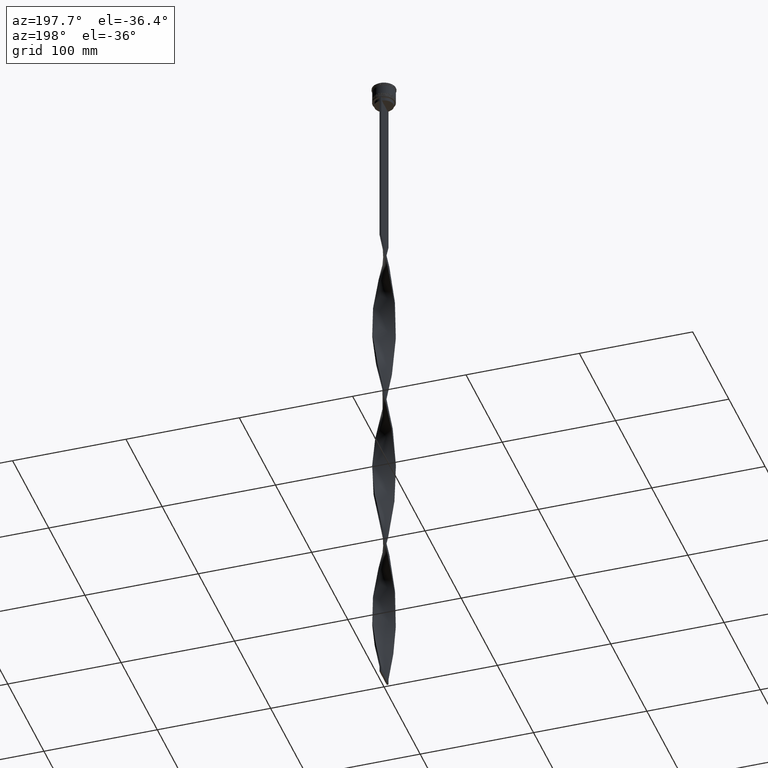
[diagram: clean part render]
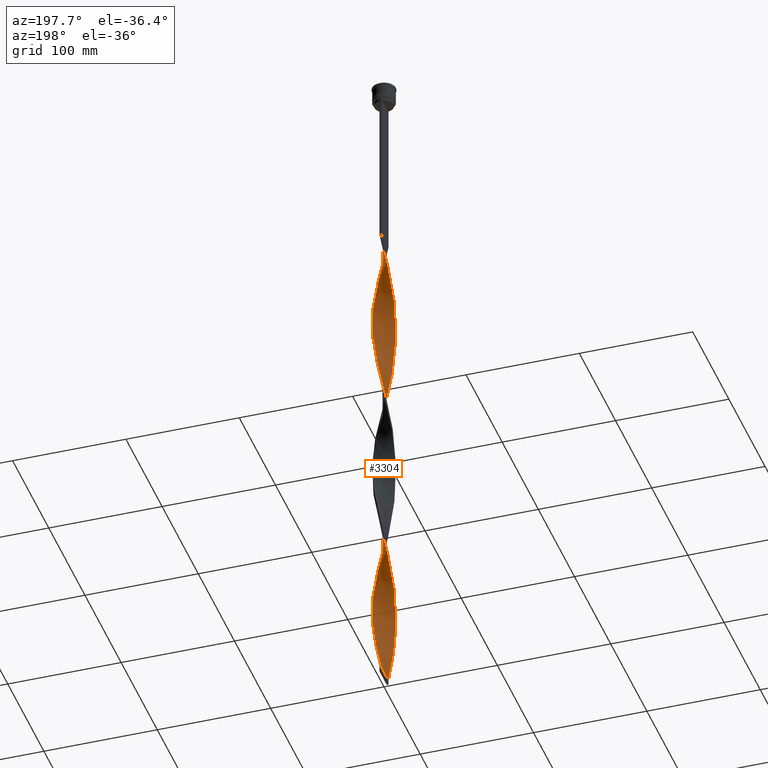
[diagram: same view with one face highlighted and labeled with its STEP entity id]
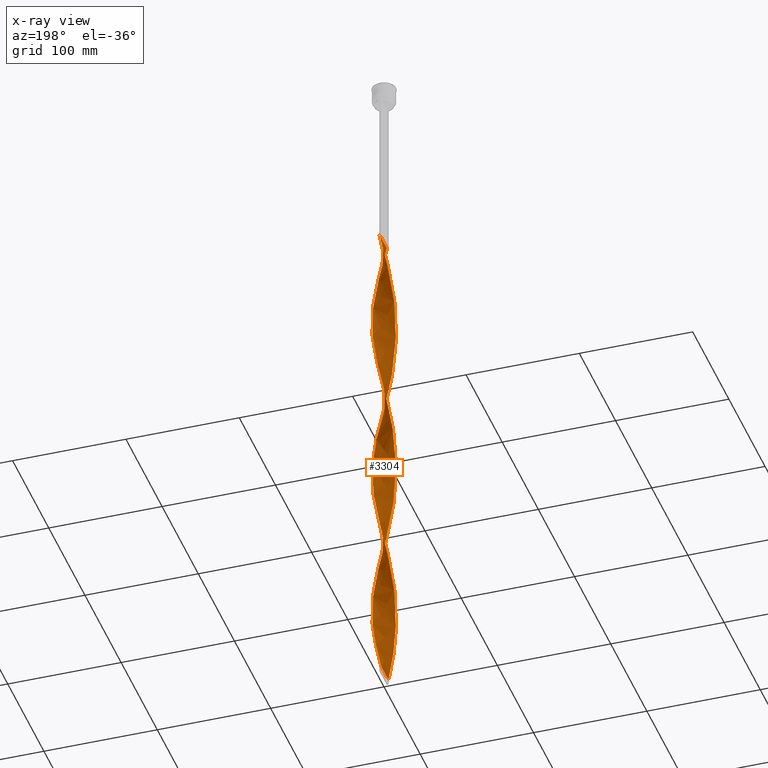
[diagram: x-ray of the same camera — body ghosted, the highlighted face saturated]
A machine part, auxiliary view. The second image highlights one B-rep face of the part: STEP entity #3304.
The next image is the same camera in x-ray: the body ghosted, the highlighted face saturated — about 0% of this face is hidden behind the body in this view.
In plain terms, the highlighted face is a freeform B-spline surface patch.
Its self-contained STEP definition (entity closure, byte-faithful):
#1 = CARTESIAN_POINT ( 'NONE',  ( -8.951782750839058167, -4.519743973034358930, -402.2916666666666856 ) ) ;
#5 = CARTESIAN_POINT ( 'NONE',  ( -9.035254037844387298, -4.350480947161667444, -258.2222222222221717 ) ) ;
#6 = CARTESIAN_POINT ( 'NONE',  ( 7.476962331155817765, 6.682629295305632766, -264.4861111111110858 ) ) ;
#26 = CARTESIAN_POINT ( 'NONE',  ( -3.312634820742005992, 9.465143979063800117, -320.8611111111110858 ) ) ;
#28 = CARTESIAN_POINT ( 'NONE',  ( -6.192563292782588213, -7.914964995880694687, -280.1458333333333144 ) ) ;
#29 = CARTESIAN_POINT ( 'NONE',  ( 9.816553969573071470, 2.048845568230872605, -239.4305555555555429 ) ) ;
#45 = CARTESIAN_POINT ( 'NONE',  ( -9.682265536257558480, 2.692256508309365692, -223.7708333333332860 ) ) ;
#48 = CARTESIAN_POINT ( 'NONE',  ( -5.492599284868786569, -8.390104474668895307, -427.3472222222222285 ) ) ;
#51 = CARTESIAN_POINT ( 'NONE',  ( -7.172695297828680872, -7.038959666430922191, -273.8819444444444002 ) ) ;
#52 = CARTESIAN_POINT ( 'NONE',  ( -0.09456537184761260040, 10.04915759711143508, -305.2013888888888573 ) ) ;
#72 = CARTESIAN_POINT ( 'NONE',  ( -10.04915759711143508, -0.09456537184761194814, -380.3680555555554861 ) ) ;
#77 = CARTESIAN_POINT ( 'NONE',  ( -8.030100497682091998, -6.042515785520200744, -267.6180555555555429 ) ) ;
#78 = CARTESIAN_POINT ( 'NONE',  ( -0.7499999999999988898, 10.00000000000000533, -308.3333333333333712 ) ) ;
#95 = CARTESIAN_POINT ( 'NONE',  ( 8.390104474668895307, 5.492599284868770582, -414.8194444444444002 ) ) ;
#97 = CARTESIAN_POINT ( 'NONE',  ( 6.682629295305634543, -7.476962331155817765, -489.9861111111111427 ) ) ;
#101 = CARTESIAN_POINT ( 'NONE',  ( -8.655543079808074580, 5.106474812894075122, -211.2430555555554861 ) ) ;
#103 = CARTESIAN_POINT ( 'NONE',  ( 8.750108451655698616, -4.942682784217360847, -204.9791666666666288 ) ) ;
#118 = CARTESIAN_POINT ( 'NONE',  ( 8.285254037844381969, -5.649519052838333444, -358.4444444444444571 ) ) ;
#125 = CARTESIAN_POINT ( 'NONE',  ( -0.5616782761701575311, 10.01234325790314195, -464.9305555555555429 ) ) ;
#142 = CARTESIAN_POINT ( 'NONE',  ( 10.01234325790314195, 0.5616782761701543114, -389.7638888888889142 ) ) ;
#143 = CARTESIAN_POINT ( 'NONE',  ( -8.951782750839058167, -4.519743973034358930, -402.2916666666666856 ) ) ;
#151 = CARTESIAN_POINT ( 'NONE',  ( -9.731216174740289659, -2.509570238428876277, -549.4930555555553156 ) ) ;
#171 = CARTESIAN_POINT ( 'NONE',  ( 9.248022421870020437, -3.933013133174654286, -367.8402777777777146 ) ) ;
#178 = CARTESIAN_POINT ( 'NONE',  ( 9.035254037844389075, 4.350480947161663003, -408.5555555555555429 ) ) ;
#192 = CARTESIAN_POINT ( 'NONE',  ( 9.999999999999998224, -0.7500000000000021094, -383.4999999999999432 ) ) ;
#194 = CARTESIAN_POINT ( 'NONE',  ( -6.192563292782586437, 7.914964995880706233, -336.5208333333332575 ) ) ;
#198 = CARTESIAN_POINT ( 'NONE',  ( 9.320399624033077757, 3.758279110105982923, -405.4236111111110858 ) ) ;
#213 = CARTESIAN_POINT ( 'NONE',  ( -10.01234325790314195, -0.5616782761701554216, -540.0972222222221717 ) ) ;
#234 = CARTESIAN_POINT ( 'NONE',  ( 6.682629295305634543, -7.476962331155817765, -489.9861111111111427 ) ) ;
#236 = CARTESIAN_POINT ( 'NONE',  ( -5.649519052838331667, -8.285254037844381969, -583.9444444444443434 ) ) ;
#249 = CARTESIAN_POINT ( 'NONE',  ( -6.540737725975564132, 7.601397897755385102, -496.2499999999999432 ) ) ;
#252 = CARTESIAN_POINT ( 'NONE',  ( 8.655543079808081686, 5.106474812894074233, -555.7569444444444571 ) ) ;
#255 = CARTESIAN_POINT ( 'NONE',  ( 6.682629295305634543, -7.476962331155817765, -189.3194444444444287 ) ) ;
#269 = CARTESIAN_POINT ( 'NONE',  ( 9.682265536257567362, 2.692256508309363472, -543.2291666666665151 ) ) ;
#270 = CARTESIAN_POINT ( 'NONE',  ( -9.035254037844387298, -4.350480947161667444, -558.8888888888889142 ) ) ;
#277 = CARTESIAN_POINT ( 'NONE',  ( 5.106474812894076010, -8.655543079808081686, -480.5902777777776578 ) ) ;
#279 = CARTESIAN_POINT ( 'NONE',  ( 3.758279110105993137, 9.320399624033081309, -286.4097222222221717 ) ) ;
#299 = CARTESIAN_POINT ( 'NONE',  ( 6.540737725975569461, 7.601397897755389543, -571.4166666666666288 ) ) ;
#304 = CARTESIAN_POINT ( 'NONE',  ( 6.042515785520210514, 8.030100497682093774, -273.8819444444444002 ) ) ;
#322 = CARTESIAN_POINT ( 'NONE',  ( -1.863746081308415681, -9.853372546717576341, -446.1388888888888573 ) ) ;
#326 = CARTESIAN_POINT ( 'NONE',  ( -1.405434628152380405, 9.950842402888577354, -311.4652777777776578 ) ) ;
#347 = CARTESIAN_POINT ( 'NONE',  ( 9.731216174740294989, -2.509570238428881606, -518.1736111111110858 ) ) ;
#351 = CARTESIAN_POINT ( 'NONE',  ( 7.914964995880691134, -6.192563292782591766, -355.3124999999998863 ) ) ;
#352 = CARTESIAN_POINT ( 'NONE',  ( -4.519743973034358930, 8.951782750839058167, -327.1250000000000000 ) ) ;
#371 = CARTESIAN_POINT ( 'NONE',  ( -10.04915759711142798, 0.09456537184761953929, -236.2986111111110574 ) ) ;
#376 = CARTESIAN_POINT ( 'NONE',  ( 9.035254037844390851, -4.350480947161673662, -508.7777777777777715 ) ) ;
#380 = CARTESIAN_POINT ( 'NONE',  ( 3.758279110105982923, -9.320399624033077757, -330.2569444444443434 ) ) ;
#381 = CARTESIAN_POINT ( 'NONE',  ( 8.951782750839056391, 4.519743973034362483, -251.9583333333332860 ) ) ;
#397 = CARTESIAN_POINT ( 'NONE',  ( -6.042515785520203409, 8.030100497682090221, -192.4513888888888289 ) ) ;
#400 = CARTESIAN_POINT ( 'NONE',  ( -4.519743973034358930, 8.951782750839058167, -327.1250000000000000 ) ) ;
#402 = CARTESIAN_POINT ( 'NONE',  ( -9.248022421870020437, 3.933013133174653841, -217.5069444444443718 ) ) ;
#421 = CARTESIAN_POINT ( 'NONE',  ( -8.285254037844383745, 5.649519052838329891, -208.1111111111110858 ) ) ;
#424 = CARTESIAN_POINT ( 'NONE',  ( -9.525807899386688149, 3.133924674267440036, -364.7083333333333144 ) ) ;
#426 = CARTESIAN_POINT ( 'NONE',  ( -5.492599284868777687, 8.390104474668893531, -189.3194444444444287 ) ) ;
#427 = CARTESIAN_POINT ( 'NONE',  ( 4.350480947161677214, 9.035254037844390851, -283.2777777777777146 ) ) ;
#441 = CARTESIAN_POINT ( 'NONE',  ( -7.172695297828681760, -7.038959666430921303, -273.8819444444443434 ) ) ;
#443 = ORIENTED_EDGE ( 'NONE', *, *, #3461, .F. ) ;
#446 = CARTESIAN_POINT ( 'NONE',  ( -10.01234325790314905, 0.5616782761701678561, -377.2361111111110858 ) ) ;
#451 = CARTESIAN_POINT ( 'NONE',  ( -5.649519052838331667, -8.285254037844381969, -283.2777777777777146 ) ) ;
#471 = CARTESIAN_POINT ( 'NONE',  ( 6.042515785520199856, -8.030100497682091998, -342.7847222222222285 ) ) ;
#473 = CARTESIAN_POINT ( 'NONE',  ( 7.476962331155817765, 6.682629295305632766, -565.1527777777778283 ) ) ;
#480 = CARTESIAN_POINT ( 'NONE',  ( -9.035254037844387298, -4.350480947161667444, -558.8888888888889142 ) ) ;
#496 = CARTESIAN_POINT ( 'NONE',  ( 9.853372546717572789, 1.863746081308401026, -396.0277777777777715 ) ) ;
#498 = CARTESIAN_POINT ( 'NONE',  ( -0.09456537184761258652, 10.04915759711143508, -605.8680555555556566 ) ) ;
#502 = CARTESIAN_POINT ( 'NONE',  ( 9.816553969573060812, -2.048845568230882375, -377.2361111111110858 ) ) ;
#508 = EDGE_CURVE ( 'NONE', #2174, #640, #1946, .T. ) ;
#521 = CARTESIAN_POINT ( 'NONE',  ( 4.519743973034367812, 8.951782750839045733, -439.8749999999999432 ) ) ;
#528 = CARTESIAN_POINT ( 'NONE',  ( 9.682265536257556704, -2.692256508309369245, -374.1041666666665719 ) ) ;
#545 = CARTESIAN_POINT ( 'NONE',  ( -3.933013133174654286, -9.248022421870020437, -292.6736111111110858 ) ) ;
#549 = CARTESIAN_POINT ( 'NONE',  ( -5.492599284868777687, 8.390104474668893531, -489.9861111111111427 ) ) ;
#560 = CARTESIAN_POINT ( 'NONE',  ( 3.133924674267426269, -9.525807899386686373, -327.1250000000000000 ) ) ;
#564 = CARTESIAN_POINT ( 'NONE',  ( -7.601397897755386879, 6.540737725975573014, -345.9166666666666288 ) ) ;
#568 = EDGE_CURVE ( 'NONE', #2061, #957, #3973, .T. ) ;
#569 = CARTESIAN_POINT ( 'NONE',  ( -9.950842402888570248, 1.405434628152383958, -530.7013888888888005 ) ) ;
#579 = CARTESIAN_POINT ( 'NONE',  ( 8.655543079808083462, 5.106474812894074233, -555.7569444444444571 ) ) ;
#580 = CARTESIAN_POINT ( 'NONE',  ( -2.692256508309368801, -9.682265536257558480, -599.6041666666666288 ) ) ;
#582 = CARTESIAN_POINT ( 'NONE',  ( -1.217921924187939098, -9.975528918694863023, -449.2708333333333144 ) ) ;
#586 = CARTESIAN_POINT ( 'NONE',  ( 1.405434628152382404, -9.950842402888577354, -161.1319444444444002 ) ) ;
#601 = CARTESIAN_POINT ( 'NONE',  ( 9.816553969573071470, 2.048845568230872605, -540.0972222222221717 ) ) ;
#607 = CARTESIAN_POINT ( 'NONE',  ( 8.390104474668897083, -5.492599284868783904, -502.5138888888889142 ) ) ;
#609 = CARTESIAN_POINT ( 'NONE',  ( -6.682629295305633654, -7.476962331155807995, -577.6805555555555429 ) ) ;
#628 = CARTESIAN_POINT ( 'NONE',  ( -6.540737725975570349, -7.601397897755387767, -421.0833333333333144 ) ) ;
#631 = CARTESIAN_POINT ( 'NONE',  ( 5.106474812894076010, -8.655543079808083462, -179.9236111111110574 ) ) ;
#635 = CARTESIAN_POINT ( 'NONE',  ( 5.649519052838331667, -8.285254037844390851, -183.0555555555555145 ) ) ;
#640 = VERTEX_POINT ( 'NONE', #990 ) ;
#650 = CARTESIAN_POINT ( 'NONE',  ( -4.350480947161678102, -9.035254037844389075, -433.6111111111110858 ) ) ;
#652 = CARTESIAN_POINT ( 'NONE',  ( 9.320399624033083086, -3.758279110105990473, -211.2430555555554861 ) ) ;
#655 = CARTESIAN_POINT ( 'NONE',  ( -5.649519052838329891, 8.285254037844392627, -333.3888888888888573 ) ) ;
#673 = CARTESIAN_POINT ( 'NONE',  ( 9.320399624033083086, -3.758279110105990473, -511.9097222222220580 ) ) ;
#677 = CARTESIAN_POINT ( 'NONE',  ( -0.09456537184761258652, 10.04915759711143508, -305.2013888888888573 ) ) ;
#695 = EDGE_CURVE ( 'NONE', #957, #640, #2474, .T. ) ;
#700 = CARTESIAN_POINT ( 'NONE',  ( 7.172695297828685312, -7.038959666430929296, -493.1180555555555998 ) ) ;
#721 = CARTESIAN_POINT ( 'NONE',  ( 8.030100497682093774, -6.042515785520210514, -499.3819444444444002 ) ) ;
#724 = CARTESIAN_POINT ( 'NONE',  ( 1.863746081308401692, -9.853372546717572789, -320.8611111111110858 ) ) ;
#725 = CARTESIAN_POINT ( 'NONE',  ( 8.285254037844390851, 5.649519052838329891, -258.2222222222221717 ) ) ;
#747 = CARTESIAN_POINT ( 'NONE',  ( -9.320399624033083086, 3.758279110105989584, -361.5763888888888005 ) ) ;
#751 = CARTESIAN_POINT ( 'NONE',  ( 9.465143979063789459, -3.312634820742016206, -370.9722222222222285 ) ) ;
#752 = CARTESIAN_POINT ( 'NONE',  ( 8.655543079808081686, 5.106474812894074233, -255.0902777777777146 ) ) ;
#765 = CARTESIAN_POINT ( 'NONE',  ( -0.7500000000000005551, -3.333333333333330373, -609.0000000000000000 ) ) ;
#770 = CARTESIAN_POINT ( 'NONE',  ( -6.540737725975564132, 7.601397897755385102, -195.5833333333333144 ) ) ;
#774 = CARTESIAN_POINT ( 'NONE',  ( 5.106474812894076010, -8.655543079808083462, -480.5902777777776578 ) ) ;
#776 = CARTESIAN_POINT ( 'NONE',  ( -5.106474812894076898, -8.655543079808074580, -286.4097222222221717 ) ) ;
#793 = CARTESIAN_POINT ( 'NONE',  ( -9.035254037844387298, -4.350480947161667444, -258.2222222222221717 ) ) ;
#797 = CARTESIAN_POINT ( 'NONE',  ( -3.933013133174650289, 9.248022421870031096, -323.9930555555555429 ) ) ;
#800 = CARTESIAN_POINT ( 'NONE',  ( -0.7500000000000013323, -9.999999999999998224, -308.3333333333333712 ) ) ;
#816 = CARTESIAN_POINT ( 'NONE',  ( 9.682265536257556704, -2.692256508309369245, -374.1041666666666288 ) ) ;
#826 = CARTESIAN_POINT ( 'NONE',  ( -9.975528918694857694, -1.217921924187930438, -242.5624999999999147 ) ) ;
#843 = CARTESIAN_POINT ( 'NONE',  ( 7.914964995880690246, -6.192563292782591766, -355.3124999999999432 ) ) ;
#848 = EDGE_LOOP ( 'NONE', ( #443, #4544, #3334, #2013 ) ) ;
#852 = CARTESIAN_POINT ( 'NONE',  ( -9.465143979063789459, 3.312634820742010433, -521.3055555555554292 ) ) ;
#868 = CARTESIAN_POINT ( 'NONE',  ( 7.172695297828685312, 7.038959666430918638, -424.2152777777777146 ) ) ;
#873 = CARTESIAN_POINT ( 'NONE',  ( 8.030100497682091998, 6.042515785520198968, -417.9513888888888005 ) ) ;
#887 = CARTESIAN_POINT ( 'NONE',  ( -0.5616782761701574200, 10.01234325790314195, -464.9305555555555429 ) ) ;
#892 = CARTESIAN_POINT ( 'NONE',  ( 6.192563292782591766, 7.914964995880691134, -430.4791666666666288 ) ) ;
#910 = CARTESIAN_POINT ( 'NONE',  ( -1.217921924187932881, 9.975528918694857694, -468.0624999999999432 ) ) ;
#913 = CARTESIAN_POINT ( 'NONE',  ( -8.951782750839049285, 4.519743973034362483, -515.0416666666666288 ) ) ;
#923 = CARTESIAN_POINT ( 'NONE',  ( 4.350480947161677214, 9.035254037844390851, -583.9444444444443434 ) ) ;
#924 = CARTESIAN_POINT ( 'NONE',  ( -7.172695297828681760, -7.038959666430921303, -574.5486111111110858 ) ) ;
#928 = CARTESIAN_POINT ( 'NONE',  ( -7.038959666430931073, -7.172695297828680872, -417.9513888888888573 ) ) ;
#930 = CARTESIAN_POINT ( 'NONE',  ( -2.692256508309363028, 9.682265536257567362, -317.7291666666665151 ) ) ;
#943 = CARTESIAN_POINT ( 'NONE',  ( -4.519743973034363371, -8.951782750839049285, -590.2083333333333712 ) ) ;
#944 = CARTESIAN_POINT ( 'NONE',  ( -10.01234325790314905, 0.5616782761701678561, -377.2361111111110858 ) ) ;
#946 = CARTESIAN_POINT ( 'NONE',  ( 7.476962331155817765, 6.682629295305632766, -565.1527777777778283 ) ) ;
#948 = CARTESIAN_POINT ( 'NONE',  ( -2.048845568230877934, -9.816553969573064364, -602.7361111111110858 ) ) ;
#957 = VERTEX_POINT ( 'NONE', #4041 ) ;
#963 = CARTESIAN_POINT ( 'NONE',  ( -8.030100497682091998, -6.042515785520199856, -568.2847222222221717 ) ) ;
#970 = CARTESIAN_POINT ( 'NONE',  ( 2.692256508309366581, -9.682265536257565586, -468.0624999999999432 ) ) ;
#972 = CARTESIAN_POINT ( 'NONE',  ( -3.312634820742010877, -9.465143979063789459, -596.4722222222222854 ) ) ;
#990 = CARTESIAN_POINT ( 'NONE',  ( -0.7499999999999988898, 10.00000000000000533, -609.0000000000000000 ) ) ;
#995 = CARTESIAN_POINT ( 'NONE',  ( 9.853372546717578118, -1.863746081308409464, -521.3055555555554292 ) ) ;
#998 = CARTESIAN_POINT ( 'NONE',  ( 8.655543079808083462, 5.106474812894074233, -255.0902777777776862 ) ) ;
#1013 = CARTESIAN_POINT ( 'NONE',  ( -1.405434628152387289, -9.950842402888570248, -605.8680555555555429 ) ) ;
#1018 = CARTESIAN_POINT ( 'NONE',  ( 1.863746081308410352, 9.853372546717578118, -596.4722222222222854 ) ) ;
#1020 = CARTESIAN_POINT ( 'NONE',  ( 4.350480947161677214, 9.035254037844390851, -283.2777777777777146 ) ) ;
#1045 = CARTESIAN_POINT ( 'NONE',  ( -9.465143979063800117, -3.312634820742005548, -396.0277777777777715 ) ) ;
#1064 = CARTESIAN_POINT ( 'NONE',  ( -9.853372546717572789, -1.863746081308404801, -245.6944444444444287 ) ) ;
#1068 = CARTESIAN_POINT ( 'NONE',  ( -4.942682784217367065, -8.750108451655693287, -430.4791666666666288 ) ) ;
#1071 = CARTESIAN_POINT ( 'NONE',  ( -3.758279110105984699, 9.320399624033077757, -179.9236111111110574 ) ) ;
#1073 = CARTESIAN_POINT ( 'NONE',  ( 7.038959666430931073, 7.172695297828681760, -267.6180555555554861 ) ) ;
#1075 = CARTESIAN_POINT ( 'NONE',  ( 0.7500000000000001110, -10.00000000000000533, -157.9999999999999716 ) ) ;
#1089 = CARTESIAN_POINT ( 'NONE',  ( -7.914964995880693799, 6.192563292782586437, -204.9791666666666288 ) ) ;
#1093 = CARTESIAN_POINT ( 'NONE',  ( -7.038959666430931073, -7.172695297828680872, -417.9513888888888005 ) ) ;
#1096 = CARTESIAN_POINT ( 'NONE',  ( 8.951782750839045733, -4.519743973034367812, -364.7083333333333144 ) ) ;
#1097 = CARTESIAN_POINT ( 'NONE',  ( 3.758279110105993137, 9.320399624033081309, -286.4097222222221717 ) ) ;
#1113 = CARTESIAN_POINT ( 'NONE',  ( -3.133924674267432042, 9.525807899386684596, -176.7916666666666572 ) ) ;
#1119 = CARTESIAN_POINT ( 'NONE',  ( -10.00000000000000533, -0.7499999999999983347, -383.4999999999999432 ) ) ;
#1121 = CARTESIAN_POINT ( 'NONE',  ( -9.853372546717572789, -1.863746081308404801, -245.6944444444444287 ) ) ;
#1122 = CARTESIAN_POINT ( 'NONE',  ( 9.950842402888575577, 1.405434628152381071, -236.2986111111110574 ) ) ;
#1142 = CARTESIAN_POINT ( 'NONE',  ( -0.5616782761701686333, -10.01234325790314905, -452.4027777777777715 ) ) ;
#1145 = CARTESIAN_POINT ( 'NONE',  ( -1.405434628152386844, -9.950842402888570248, -305.2013888888888573 ) ) ;
#1163 = CARTESIAN_POINT ( 'NONE',  ( 2.692256508309369689, 9.682265536257556704, -449.2708333333333144 ) ) ;
#1165 = CARTESIAN_POINT ( 'NONE',  ( 9.853372546717578118, -1.863746081308409464, -521.3055555555554292 ) ) ;
#1168 = CARTESIAN_POINT ( 'NONE',  ( -10.04915759711142798, 0.09456537184761942827, -236.2986111111110574 ) ) ;
#1170 = CARTESIAN_POINT ( 'NONE',  ( 9.731216174740294989, -2.509570238428881606, -217.5069444444443718 ) ) ;
#1187 = CARTESIAN_POINT ( 'NONE',  ( 3.758279110105982923, -9.320399624033077757, -330.2569444444443434 ) ) ;
#1196 = CARTESIAN_POINT ( 'NONE',  ( -7.914964995880694687, 6.192563292782586437, -505.6458333333333712 ) ) ;
#1213 = CARTESIAN_POINT ( 'NONE',  ( -0.09456537184762008053, -10.04915759711142798, -311.4652777777777146 ) ) ;
#1219 = CARTESIAN_POINT ( 'NONE',  ( 0.7500000000000001110, 9.999999999999998224, -458.6666666666666856 ) ) ;
#1232 = CARTESIAN_POINT ( 'NONE',  ( 7.038959666430921303, -7.172695297828681760, -349.0486111111110858 ) ) ;
#1238 = CARTESIAN_POINT ( 'NONE',  ( 2.048845568230883263, 9.816553969573060812, -452.4027777777777715 ) ) ;
#1252 = CARTESIAN_POINT ( 'NONE',  ( 8.030100497682091998, 6.042515785520198079, -417.9513888888888573 ) ) ;
#1257 = CARTESIAN_POINT ( 'NONE',  ( -8.285254037844383745, 5.649519052838329891, -508.7777777777777715 ) ) ;
#1273 = CARTESIAN_POINT ( 'NONE',  ( -8.390104474668893531, -5.492599284868775023, -565.1527777777778283 ) ) ;
#1275 = CARTESIAN_POINT ( 'NONE',  ( 6.042515785520209626, 8.030100497682093774, -574.5486111111110858 ) ) ;
#1277 = CARTESIAN_POINT ( 'NONE',  ( -7.476962331155810659, 6.682629295305631878, -502.5138888888889142 ) ) ;
#1291 = CARTESIAN_POINT ( 'NONE',  ( -9.731216174740289659, -2.509570238428876277, -549.4930555555554292 ) ) ;
#1294 = CARTESIAN_POINT ( 'NONE',  ( 9.950842402888575577, 1.405434628152381071, -536.9652777777778283 ) ) ;
#1296 = CARTESIAN_POINT ( 'NONE',  ( 9.525807899386689925, -3.133924674267435151, -214.3749999999999716 ) ) ;
#1313 = CARTESIAN_POINT ( 'NONE',  ( -8.285254037844394404, -5.649519052838325450, -408.5555555555555429 ) ) ;
#1318 = CARTESIAN_POINT ( 'NONE',  ( 2.048845568230874381, -9.816553969573071470, -164.2638888888888857 ) ) ;
#1324 = CARTESIAN_POINT ( 'NONE',  ( -5.106474812894074233, 8.655543079808081686, -330.2569444444443434 ) ) ;
#1327 = CARTESIAN_POINT ( 'NONE',  ( 2.692256508309366581, -9.682265536257565586, -167.3958333333332860 ) ) ;
#1337 = CARTESIAN_POINT ( 'NONE',  ( 0.7500000000000001110, -10.00000000000000533, -157.9999999999999716 ) ) ;
#1345 = CARTESIAN_POINT ( 'NONE',  ( 3.312634820742009989, -9.465143979063798341, -471.1944444444444002 ) ) ;
#1348 = CARTESIAN_POINT ( 'NONE',  ( 7.601397897755390431, -6.540737725975569461, -195.5833333333333144 ) ) ;
#1368 = CARTESIAN_POINT ( 'NONE',  ( 5.649519052838331667, -8.285254037844390851, -483.7222222222222285 ) ) ;
#1371 = CARTESIAN_POINT ( 'NONE',  ( 5.649519052838331667, -8.285254037844390851, -183.0555555555555145 ) ) ;
#1391 = CARTESIAN_POINT ( 'NONE',  ( -5.106474812894076010, -8.655543079808072804, -286.4097222222221717 ) ) ;
#1392 = CARTESIAN_POINT ( 'NONE',  ( -9.248022421870029319, -3.933013133174653397, -399.1597222222221149 ) ) ;
#1394 = CARTESIAN_POINT ( 'NONE',  ( -0.7499999999999988898, 10.00000000000000533, -308.3333333333333712 ) ) ;
#1411 = CARTESIAN_POINT ( 'NONE',  ( -0.7499999999999997780, 3.333333333333337478, -609.0000000000000000 ) ) ;
#1420 = CARTESIAN_POINT ( 'NONE',  ( -9.465143979063789459, 3.312634820742010433, -220.6388888888888857 ) ) ;
#1425 = CARTESIAN_POINT ( 'NONE',  ( -2.509570238428882938, -9.731216174740294989, -443.0069444444444002 ) ) ;
#1427 = CARTESIAN_POINT ( 'NONE',  ( -8.750108451655693287, -4.942682784217351966, -261.3541666666666856 ) ) ;
#1448 = CARTESIAN_POINT ( 'NONE',  ( 2.048845568230874381, -9.816553969573071470, -464.9305555555555429 ) ) ;
#1451 = CARTESIAN_POINT ( 'NONE',  ( 6.540737725975558803, -7.601397897755388655, -345.9166666666666288 ) ) ;
#1470 = CARTESIAN_POINT ( 'NONE',  ( -4.350480947161678102, -9.035254037844389075, -433.6111111111110858 ) ) ;
#1473 = CARTESIAN_POINT ( 'NONE',  ( -7.914964995880694687, 6.192563292782586437, -204.9791666666666288 ) ) ;
#1474 = CARTESIAN_POINT ( 'NONE',  ( -1.405434628152380405, 9.950842402888575577, -311.4652777777777146 ) ) ;
#1491 = CARTESIAN_POINT ( 'NONE',  ( -8.750108451655693287, -4.942682784217351966, -261.3541666666666856 ) ) ;
#1495 = CARTESIAN_POINT ( 'NONE',  ( -9.682265536257569138, -2.692256508309357699, -392.8958333333332575 ) ) ;
#1500 = CARTESIAN_POINT ( 'NONE',  ( -7.476962331155810659, 6.682629295305631878, -201.8472222222222001 ) ) ;
#1501 = CARTESIAN_POINT ( 'NONE',  ( -3.312634820742005992, 9.465143979063800117, -320.8611111111110858 ) ) ;
#1515 = CARTESIAN_POINT ( 'NONE',  ( 2.048845568230883263, 9.816553969573060812, -452.4027777777777715 ) ) ;
#1517 = CARTESIAN_POINT ( 'NONE',  ( -8.750108451655695063, 4.942682784217367065, -355.3124999999998863 ) ) ;
#1520 = CARTESIAN_POINT ( 'NONE',  ( 7.038959666430922191, -7.172695297828681760, -349.0486111111110858 ) ) ;
#1524 = CARTESIAN_POINT ( 'NONE',  ( 9.035254037844390851, -4.350480947161673662, -208.1111111111110858 ) ) ;
#1540 = CARTESIAN_POINT ( 'NONE',  ( 8.655543079808072804, -5.106474812894073345, -361.5763888888888005 ) ) ;
#1545 = CARTESIAN_POINT ( 'NONE',  ( 6.682629295305635431, 7.476962331155807995, -427.3472222222222285 ) ) ;
#1563 = CARTESIAN_POINT ( 'NONE',  ( 9.035254037844389075, 4.350480947161663003, -408.5555555555555429 ) ) ;
#1572 = CARTESIAN_POINT ( 'NONE',  ( -9.248022421870020437, 3.933013133174653841, -518.1736111111110858 ) ) ;
#1589 = CARTESIAN_POINT ( 'NONE',  ( 1.217921924187929772, -9.975528918694857694, -317.7291666666665719 ) ) ;
#1598 = CARTESIAN_POINT ( 'NONE',  ( 9.731216174740289659, 2.509570238428876721, -399.1597222222221149 ) ) ;
#1612 = CARTESIAN_POINT ( 'NONE',  ( 3.312634820742016650, 9.465143979063789459, -446.1388888888888573 ) ) ;
#1613 = CARTESIAN_POINT ( 'NONE',  ( -9.035254037844390851, 4.350480947161678102, -358.4444444444444571 ) ) ;
#1617 = CARTESIAN_POINT ( 'NONE',  ( -6.042515785520205185, 8.030100497682090221, -493.1180555555555998 ) ) ;
#1633 = CARTESIAN_POINT ( 'NONE',  ( -9.816553969573064364, 2.048845568230874825, -527.5694444444444571 ) ) ;
#1651 = CARTESIAN_POINT ( 'NONE',  ( 3.758279110105993137, 9.320399624033081309, -587.0763888888889142 ) ) ;
#1652 = CARTESIAN_POINT ( 'NONE',  ( -3.933013133174654286, -9.248022421870020437, -593.3402777777777146 ) ) ;
#1654 = CARTESIAN_POINT ( 'NONE',  ( -9.731216174740294989, 2.509570238428882494, -367.8402777777777146 ) ) ;
#1655 = CARTESIAN_POINT ( 'NONE',  ( 9.035254037844390851, -4.350480947161673662, -508.7777777777777715 ) ) ;
#1657 = CARTESIAN_POINT ( 'NONE',  ( -2.692256508309368801, -9.682265536257558480, -599.6041666666666288 ) ) ;
#1671 = CARTESIAN_POINT ( 'NONE',  ( -10.01234325790314195, -0.5616782761701553106, -540.0972222222221717 ) ) ;
#1675 = CARTESIAN_POINT ( 'NONE',  ( 5.492599284868785681, 8.390104474668895307, -577.6805555555555429 ) ) ;
#1677 = CARTESIAN_POINT ( 'NONE',  ( 9.816553969573071470, 2.048845568230872605, -239.4305555555555429 ) ) ;
#1690 = CARTESIAN_POINT ( 'NONE',  ( -7.601397897755385102, -6.540737725975563244, -571.4166666666666288 ) ) ;
#1696 = CARTESIAN_POINT ( 'NONE',  ( -7.476962331155820429, -6.682629295305629213, -414.8194444444444002 ) ) ;
#1699 = CARTESIAN_POINT ( 'NONE',  ( 3.133924674267436039, 9.525807899386689925, -289.5416666666666288 ) ) ;
#1712 = CARTESIAN_POINT ( 'NONE',  ( -6.042515785520203409, 8.030100497682090221, -493.1180555555555429 ) ) ;
#1721 = CARTESIAN_POINT ( 'NONE',  ( 9.682265536257567362, 2.692256508309363472, -543.2291666666665151 ) ) ;
#1723 = CARTESIAN_POINT ( 'NONE',  ( -5.106474812894076898, -8.655543079808074580, -587.0763888888889142 ) ) ;
#1745 = CARTESIAN_POINT ( 'NONE',  ( 10.01234325790314905, -0.5616782761701598625, -527.5694444444444571 ) ) ;
#1748 = CARTESIAN_POINT ( 'NONE',  ( 8.285254037844390851, 5.649519052838329891, -258.2222222222221717 ) ) ;
#1765 = CARTESIAN_POINT ( 'NONE',  ( -1.217921924187932881, 9.975528918694857694, -167.3958333333332860 ) ) ;
#1768 = CARTESIAN_POINT ( 'NONE',  ( -9.248022421870031096, -3.933013133174653841, -399.1597222222221149 ) ) ;
#1771 = CARTESIAN_POINT ( 'NONE',  ( 8.655543079808074580, -5.106474812894073345, -361.5763888888888005 ) ) ;
#1792 = CARTESIAN_POINT ( 'NONE',  ( -5.649519052838331667, -8.285254037844381969, -283.2777777777777146 ) ) ;
#1797 = CARTESIAN_POINT ( 'NONE',  ( -7.914964995880707122, -6.192563292782585549, -411.6875000000000000 ) ) ;
#1799 = CARTESIAN_POINT ( 'NONE',  ( -2.509570238428877609, 9.731216174740289659, -173.6597222222221717 ) ) ;
#1800 = CARTESIAN_POINT ( 'NONE',  ( 5.492599284868785681, 8.390104474668895307, -277.0138888888889142 ) ) ;
#1817 = CARTESIAN_POINT ( 'NONE',  ( -9.248022421870020437, 3.933013133174653397, -217.5069444444443718 ) ) ;
#1822 = CARTESIAN_POINT ( 'NONE',  ( -9.950842402888580907, -1.405434628152375520, -386.6319444444444571 ) ) ;
#1824 = CARTESIAN_POINT ( 'NONE',  ( -9.950842402888570248, 1.405434628152383958, -230.0347222222222001 ) ) ;
#1825 = CARTESIAN_POINT ( 'NONE',  ( 9.975528918694864799, -1.217921924187935545, -223.7708333333332860 ) ) ;
#1827 = CARTESIAN_POINT ( 'NONE',  ( 7.172695297828685312, -7.038959666430928408, -192.4513888888888289 ) ) ;
#1841 = CARTESIAN_POINT ( 'NONE',  ( -10.01234325790314195, -0.5616782761701553106, -239.4305555555555429 ) ) ;
#1844 = CARTESIAN_POINT ( 'NONE',  ( -7.172695297828681760, 7.038959666430931073, -342.7847222222222285 ) ) ;
#1847 = CARTESIAN_POINT ( 'NONE',  ( -4.519743973034363371, -8.951782750839049285, -289.5416666666666288 ) ) ;
#1848 = CARTESIAN_POINT ( 'NONE',  ( 3.133924674267436039, 9.525807899386689925, -289.5416666666666288 ) ) ;
#1850 = CARTESIAN_POINT ( 'NONE',  ( 9.525807899386689925, -3.133924674267435151, -214.3749999999999716 ) ) ;
#1864 = CARTESIAN_POINT ( 'NONE',  ( -6.682629295305633654, -7.476962331155807995, -277.0138888888889142 ) ) ;
#1867 = CARTESIAN_POINT ( 'NONE',  ( -9.816553969573071470, -2.048845568230871717, -389.7638888888889142 ) ) ;
#1870 = CARTESIAN_POINT ( 'NONE',  ( -1.217921924187939320, -9.975528918694864799, -449.2708333333333712 ) ) ;
#1876 = CARTESIAN_POINT ( 'NONE',  ( 4.350480947161667444, -9.035254037844387298, -333.3888888888888573 ) ) ;
#1890 = CARTESIAN_POINT ( 'NONE',  ( -2.048845568230877934, -9.816553969573064364, -302.0694444444444002 ) ) ;
#1896 = CARTESIAN_POINT ( 'NONE',  ( 9.525807899386686373, 3.133924674267425825, -402.2916666666666856 ) ) ;
#1912 = CARTESIAN_POINT ( 'NONE',  ( 9.525807899386686373, 3.133924674267425381, -402.2916666666666856 ) ) ;
#1913 = CARTESIAN_POINT ( 'NONE',  ( 4.942682784217361736, 8.750108451655696840, -580.8124999999998863 ) ) ;
#1917 = CARTESIAN_POINT ( 'NONE',  ( -1.217921924187932881, 9.975528918694859470, -468.0624999999999432 ) ) ;
#1934 = CARTESIAN_POINT ( 'NONE',  ( 1.863746081308401470, -9.853372546717572789, -320.8611111111110858 ) ) ;
#1942 = CARTESIAN_POINT ( 'NONE',  ( 5.649519052838332556, 8.285254037844381969, -433.6111111111110858 ) ) ;
#1946 =( BOUNDED_CURVE ( )  B_SPLINE_CURVE ( 2, ( #1075, #2500, #4488, #1327, #2754, #3792, #2802, #4145, #635, #3814, #2076, #1827, #4266, #3282, #2196, #103, #1524, #3915, #1850, #1170, #3987, #1825, #2194, #2498, #3181, #1122, #29, #4264, #3886, #2145, #381, #752, #725, #4290, #6, #1073, #2522, #3540, #1800, #3232, #427, #1097, #1848, #3256, #3912, #2171, #2548, #52, #78, #1474, #2894, #4314, #1501, #2919, #352, #1324, #655, #194, #3042, #4108, #564, #3378, #1960, #2703, #1613, #1995, #4089, #1654, #2365, #2660, #944, #3021, #2214, #3605, #1867, #3275, #3902, #1392, #143, #4481, #1313, #4160, #1696, #928, #628, #2442, #2742, #4135, #650, #3738, #2020, #2419, #322, #582, #4508, #1997, #3398, #3832, #2043, #970, #1345, #3444, #3783, #277, #1368, #3489, #234, #2395, #3129, #3808, #607, #4463, #1655, #673, #3104, #3064, #995, #2769, #1745, #3151, #3759, #1294, #2067, #1721, #2720, #2348, #3464, #252, #3420, #4110, #946, #2368, #299, #1275, #1675, #3082, #2092, #2794, #4533, #4187, #1018, #2704, #4091, #2884, #2514 ),
 .UNSPECIFIED., .F., .T. ) 
 B_SPLINE_CURVE_WITH_KNOTS ( ( 3, 2, 2, 2, 2, 2, 2, 2, 2, 2, 2, 2, 2, 2, 2, 2, 2, 2, 2, 2, 2, 2, 2, 2, 2, 2, 2, 2, 2, 2, 2, 2, 2, 2, 2, 2, 2, 2, 2, 2, 2, 2, 2, 2, 2, 2, 2, 2, 2, 2, 2, 2, 2, 2, 2, 2, 2, 2, 2, 2, 2, 2, 2, 2, 2, 2, 2, 2, 2, 2, 2, 2, 3 ),
 ( 0.000000000000000000, 0.01041666666666666609, 0.02083333333333333218, 0.03125000000000000000, 0.04166666666666666435, 0.05208333333333333565, 0.06250000000000000000, 0.07291666666666667129, 0.08333333333333332871, 0.09375000000000000000, 0.1041666666666666713, 0.1145833333333333287, 0.1250000000000000000, 0.1354166666666666574, 0.1458333333333333426, 0.1562500000000000000, 0.1666666666666666574, 0.1770833333333333426, 0.1875000000000000000, 0.1979166666666666574, 0.2083333333333333426, 0.2187500000000000000, 0.2291666666666666574, 0.2395833333333333426, 0.2500000000000000000, 0.2604166666666666852, 0.2708333333333333148, 0.2812500000000000000, 0.2916666666666666852, 0.3020833333333333148, 0.3125000000000000000, 0.3229166666666666852, 0.3333333333333333148, 0.3437500000000000000, 0.3541666666666666852, 0.3645833333333333148, 0.3750000000000000000, 0.3854166666666666852, 0.3958333333333333148, 0.4062500000000000000, 0.4166666666666666852, 0.4270833333333333148, 0.4375000000000000000, 0.4479166666666666852, 0.4583333333333333148, 0.4687500000000000000, 0.4791666666666666852, 0.4895833333333333148, 0.5000000000000000000, 0.5104166666666666297, 0.5208333333333333703, 0.5312500000000000000, 0.5416666666666666297, 0.5520833333333333703, 0.5625000000000000000, 0.5729166666666666297, 0.5833333333333333703, 0.5937500000000000000, 0.6041666666666666297, 0.6145833333333333703, 0.6250000000000000000, 0.6354166666666666297, 0.6458333333333333703, 0.6562500000000000000, 0.6666666666666666297, 0.6770833333333333703, 0.6875000000000000000, 0.6979166666666666297, 0.7083333333333333703, 0.7187500000000000000, 0.7291666666666666297, 0.7395833333333333703, 0.7500000000000000000 ),
 .UNSPECIFIED. ) 
 CURVE ( )  GEOMETRIC_REPRESENTATION_ITEM ( )  RATIONAL_B_SPLINE_CURVE ( ( 1.000000000000000000, 0.9978589232386034791, 1.000000000000000000, 0.9978589232386034791, 1.000000000000000000, 0.9978589232386034791, 1.000000000000000000, 0.9978589232386034791, 1.000000000000000000, 0.9978589232386034791, 1.000000000000000000, 0.9978589232386034791, 1.000000000000000000, 0.9978589232386034791, 1.000000000000000000, 0.9978589232386034791, 1.000000000000000000, 0.9978589232386034791, 1.000000000000000000, 0.9978589232386034791, 1.000000000000000000, 0.9978589232386034791, 1.000000000000000000, 0.9978589232386034791, 1.000000000000000000, 0.9978589232386034791, 1.000000000000000000, 0.9978589232386034791, 1.000000000000000000, 0.9978589232386034791, 1.000000000000000000, 0.9978589232386034791, 1.000000000000000000, 0.9978589232386034791, 1.000000000000000000, 0.9978589232386034791, 1.000000000000000000, 0.9978589232386034791, 1.000000000000000000, 0.9978589232386034791, 1.000000000000000000, 0.9978589232386034791, 1.000000000000000000, 0.9978589232386034791, 1.000000000000000000, 0.9978589232386034791, 1.000000000000000000, 0.9978589232386034791, 1.000000000000000000, 0.9978589232386034791, 1.000000000000000000, 0.9978589232386034791, 1.000000000000000000, 0.9978589232386034791, 1.000000000000000000, 0.9978589232386034791, 1.000000000000000000, 0.9978589232386034791, 1.000000000000000000, 0.9978589232386034791, 1.000000000000000000, 0.9978589232386034791, 1.000000000000000000, 0.9978589232386034791, 1.000000000000000000, 0.9978589232386034791, 1.000000000000000000, 0.9978589232386034791, 1.000000000000000000, 0.9978589232386034791, 1.000000000000000000, 0.9978589232386034791, 1.000000000000000000, 0.9978589232386034791, 1.000000000000000000, 0.9978589232386034791, 1.000000000000000000, 0.9978589232386034791, 1.000000000000000000, 0.9978589232386034791, 1.000000000000000000, 0.9978589232386034791, 1.000000000000000000, 0.9978589232386034791, 1.000000000000000000, 0.9978589232386034791, 1.000000000000000000, 0.9978589232386034791, 1.000000000000000000, 0.9978589232386034791, 1.000000000000000000, 0.9978589232386034791, 1.000000000000000000, 0.9978589232386034791, 1.000000000000000000, 0.9978589232386034791, 1.000000000000000000, 0.9978589232386034791, 1.000000000000000000, 0.9978589232386034791, 1.000000000000000000, 0.9978589232386034791, 1.000000000000000000, 0.9978589232386034791, 1.000000000000000000, 0.9978589232386034791, 1.000000000000000000, 0.9978589232386034791, 1.000000000000000000, 0.9978589232386034791, 1.000000000000000000, 0.9978589232386034791, 1.000000000000000000, 0.9978589232386034791, 1.000000000000000000, 0.9978589232386034791, 1.000000000000000000, 0.9978589232386034791, 1.000000000000000000, 0.9978589232386034791, 1.000000000000000000, 0.9978589232386034791, 1.000000000000000000, 0.9978589232386034791, 1.000000000000000000, 0.9978589232386034791, 1.000000000000000000, 0.9978589232386034791, 1.000000000000000000, 0.9978589232386034791, 1.000000000000000000, 0.9978589232386034791, 1.000000000000000000, 0.9978589232386034791, 1.000000000000000000, 0.9978589232386034791, 1.000000000000000000, 0.9978589232386034791, 1.000000000000000000, 0.9978589232386034791, 1.000000000000000000, 0.9978589232386034791, 1.000000000000000000, 0.9978589232386034791, 1.000000000000000000 ) ) 
 REPRESENTATION_ITEM ( '' )  );
#1957 = CARTESIAN_POINT ( 'NONE',  ( -3.133924674267432042, 9.525807899386684596, -477.4583333333333144 ) ) ;
#1960 = CARTESIAN_POINT ( 'NONE',  ( -8.390104474668895307, 5.492599284868785681, -352.1805555555554861 ) ) ;
#1963 = CARTESIAN_POINT ( 'NONE',  ( 9.853372546717572789, 1.863746081308401248, -396.0277777777777715 ) ) ;
#1976 = CARTESIAN_POINT ( 'NONE',  ( -9.950842402888570248, 1.405434628152384180, -530.7013888888888005 ) ) ;
#1981 = CARTESIAN_POINT ( 'NONE',  ( -10.04915759711142798, 0.09456537184761942827, -536.9652777777778283 ) ) ;
#1993 = CARTESIAN_POINT ( 'NONE',  ( -5.649519052838331667, -8.285254037844381969, -583.9444444444443434 ) ) ;
#1995 = CARTESIAN_POINT ( 'NONE',  ( -9.320399624033083086, 3.758279110105989584, -361.5763888888888005 ) ) ;
#1997 = CARTESIAN_POINT ( 'NONE',  ( 0.09456537184761140691, -10.04915759711143508, -455.5347222222221149 ) ) ;
#2002 = CARTESIAN_POINT ( 'NONE',  ( 10.01234325790314905, -0.5616782761701598625, -226.9027777777777715 ) ) ;
#2013 = ORIENTED_EDGE ( 'NONE', *, *, #568, .F. ) ;
#2016 = CARTESIAN_POINT ( 'NONE',  ( 1.863746081308410352, 9.853372546717578118, -596.4722222222222854 ) ) ;
#2017 = CARTESIAN_POINT ( 'NONE',  ( -6.682629295305633654, -7.476962331155807995, -577.6805555555555429 ) ) ;
#2020 = CARTESIAN_POINT ( 'NONE',  ( -3.133924674267440924, -9.525807899386688149, -439.8749999999999432 ) ) ;
#2023 = CARTESIAN_POINT ( 'NONE',  ( 7.914964995880705345, 6.192563292782586437, -261.3541666666666856 ) ) ;
#2039 = CARTESIAN_POINT ( 'NONE',  ( -10.04915759711142798, 0.09456537184761953929, -536.9652777777778283 ) ) ;
#2043 = CARTESIAN_POINT ( 'NONE',  ( 2.048845568230874381, -9.816553969573071470, -464.9305555555555429 ) ) ;
#2045 = CARTESIAN_POINT ( 'NONE',  ( 4.942682784217361736, 8.750108451655696840, -280.1458333333333144 ) ) ;
#2061 = VERTEX_POINT ( 'NONE', #2744 ) ;
#2067 = CARTESIAN_POINT ( 'NONE',  ( 9.816553969573071470, 2.048845568230872605, -540.0972222222221717 ) ) ;
#2070 = CARTESIAN_POINT ( 'NONE',  ( 7.476962331155817765, 6.682629295305632766, -264.4861111111110858 ) ) ;
#2076 = CARTESIAN_POINT ( 'NONE',  ( 6.682629295305634543, -7.476962331155817765, -189.3194444444444287 ) ) ;
#2092 = CARTESIAN_POINT ( 'NONE',  ( 4.350480947161677214, 9.035254037844390851, -583.9444444444443434 ) ) ;
#2095 = CARTESIAN_POINT ( 'NONE',  ( 9.248022421870031096, 3.933013133174652953, -248.8263888888888289 ) ) ;
#2120 = CARTESIAN_POINT ( 'NONE',  ( 8.750108451655698616, -4.942682784217360847, -505.6458333333333712 ) ) ;
#2141 = CARTESIAN_POINT ( 'NONE',  ( -8.030100497682093774, 6.042515785520211402, -349.0486111111110858 ) ) ;
#2144 = CARTESIAN_POINT ( 'NONE',  ( 1.217921924187929994, -9.975528918694857694, -317.7291666666665151 ) ) ;
#2145 = CARTESIAN_POINT ( 'NONE',  ( 9.248022421870029319, 3.933013133174652509, -248.8263888888888289 ) ) ;
#2164 = CARTESIAN_POINT ( 'NONE',  ( -2.509570238428877609, 9.731216174740289659, -173.6597222222221717 ) ) ;
#2168 = CARTESIAN_POINT ( 'NONE',  ( 0.09456537184761140691, -10.04915759711143508, -455.5347222222221149 ) ) ;
#2170 = CARTESIAN_POINT ( 'NONE',  ( -8.951782750839049285, 4.519743973034362483, -214.3749999999999716 ) ) ;
#2171 = CARTESIAN_POINT ( 'NONE',  ( 1.217921924187938210, 9.975528918694864799, -298.9374999999999432 ) ) ;
#2174 = VERTEX_POINT ( 'NONE', #3878 ) ;
#2188 = CARTESIAN_POINT ( 'NONE',  ( -9.816553969573064364, 2.048845568230875269, -226.9027777777777715 ) ) ;
#2190 = CARTESIAN_POINT ( 'NONE',  ( -9.816553969573071470, -2.048845568230871717, -389.7638888888889142 ) ) ;
#2193 = CARTESIAN_POINT ( 'NONE',  ( -9.816553969573064364, 2.048845568230874825, -226.9027777777777715 ) ) ;
#2194 = CARTESIAN_POINT ( 'NONE',  ( 10.01234325790314905, -0.5616782761701598625, -226.9027777777777715 ) ) ;
#2196 = CARTESIAN_POINT ( 'NONE',  ( 8.390104474668897083, -5.492599284868783904, -201.8472222222222001 ) ) ;
#2210 = CARTESIAN_POINT ( 'NONE',  ( -7.601397897755385102, -6.540737725975563244, -270.7500000000000000 ) ) ;
#2214 = CARTESIAN_POINT ( 'NONE',  ( -10.00000000000000533, -0.7499999999999983347, -383.4999999999999432 ) ) ;
#2215 = CARTESIAN_POINT ( 'NONE',  ( -9.975528918694864799, 1.217921924187938876, -374.1041666666665719 ) ) ;
#2218 = CARTESIAN_POINT ( 'NONE',  ( 3.133924674267426269, -9.525807899386686373, -327.1250000000000000 ) ) ;
#2236 = CARTESIAN_POINT ( 'NONE',  ( -1.405434628152387289, -9.950842402888570248, -305.2013888888888573 ) ) ;
#2240 = CARTESIAN_POINT ( 'NONE',  ( 9.975528918694866576, -1.217921924187935545, -524.4375000000000000 ) ) ;
#2246 = CARTESIAN_POINT ( 'NONE',  ( -9.853372546717572789, -1.863746081308404801, -546.3611111111110858 ) ) ;
#2262 = CARTESIAN_POINT ( 'NONE',  ( 7.476962331155807995, -6.682629295305633654, -352.1805555555554861 ) ) ;
#2269 = CARTESIAN_POINT ( 'NONE',  ( 1.405434628152387955, 9.950842402888570248, -455.5347222222221149 ) ) ;
#2288 = CARTESIAN_POINT ( 'NONE',  ( 6.682629295305635431, 7.476962331155807995, -427.3472222222222285 ) ) ;
#2292 = CARTESIAN_POINT ( 'NONE',  ( 9.950842402888570248, -1.405434628152387511, -380.3680555555554861 ) ) ;
#2304 = CARTESIAN_POINT ( 'NONE',  ( -1.863746081308405689, 9.853372546717572789, -471.1944444444444002 ) ) ;
#2312 = CARTESIAN_POINT ( 'NONE',  ( -3.758279110105984699, 9.320399624033077757, -480.5902777777776578 ) ) ;
#2327 = CARTESIAN_POINT ( 'NONE',  ( 9.320399624033077757, 3.758279110105982923, -405.4236111111110858 ) ) ;
#2331 = CARTESIAN_POINT ( 'NONE',  ( -7.038959666430922191, 7.172695297828680872, -499.3819444444444002 ) ) ;
#2344 = CARTESIAN_POINT ( 'NONE',  ( -9.975528918694857694, -1.217921924187930216, -543.2291666666665151 ) ) ;
#2348 = CARTESIAN_POINT ( 'NONE',  ( 9.248022421870029319, 3.933013133174652509, -549.4930555555554292 ) ) ;
#2351 = CARTESIAN_POINT ( 'NONE',  ( 8.750108451655698616, -4.942682784217360847, -204.9791666666666288 ) ) ;
#2365 = CARTESIAN_POINT ( 'NONE',  ( -9.853372546717576341, 1.863746081308415237, -370.9722222222222285 ) ) ;
#2368 = CARTESIAN_POINT ( 'NONE',  ( 7.038959666430931073, 7.172695297828681760, -568.2847222222221717 ) ) ;
#2373 = CARTESIAN_POINT ( 'NONE',  ( 7.172695297828685312, -7.038959666430929296, -192.4513888888888289 ) ) ;
#2378 = CARTESIAN_POINT ( 'NONE',  ( 0.09456537184761801274, 10.04915759711142798, -161.1319444444444002 ) ) ;
#2389 = CARTESIAN_POINT ( 'NONE',  ( 9.465143979063798341, 3.312634820742009101, -546.3611111111110858 ) ) ;
#2395 = CARTESIAN_POINT ( 'NONE',  ( 7.172695297828685312, -7.038959666430928408, -493.1180555555555429 ) ) ;
#2398 = CARTESIAN_POINT ( 'NONE',  ( 6.540737725975569461, 7.601397897755389543, -270.7500000000000000 ) ) ;
#2413 = CARTESIAN_POINT ( 'NONE',  ( -8.951782750839049285, 4.519743973034362483, -515.0416666666666288 ) ) ;
#2419 = CARTESIAN_POINT ( 'NONE',  ( -2.509570238428883382, -9.731216174740294989, -443.0069444444444002 ) ) ;
#2421 = CARTESIAN_POINT ( 'NONE',  ( -4.519743973034363371, -8.951782750839049285, -590.2083333333333712 ) ) ;
#2442 = CARTESIAN_POINT ( 'NONE',  ( -6.042515785520214067, -8.030100497682090221, -424.2152777777777146 ) ) ;
#2446 = CARTESIAN_POINT ( 'NONE',  ( 8.030100497682093774, -6.042515785520210514, -198.7152777777777430 ) ) ;
#2469 = CARTESIAN_POINT ( 'NONE',  ( -4.942682784217354630, 8.750108451655691510, -186.1874999999999716 ) ) ;
#2472 = CARTESIAN_POINT ( 'NONE',  ( -7.476962331155820429, -6.682629295305629213, -414.8194444444444002 ) ) ;
#2474 = B_SPLINE_CURVE_WITH_KNOTS ( 'NONE', 3,
 ( #3526, #765, #1411, #4202 ),
 .UNSPECIFIED., .F., .F.,
 ( 4, 4 ),
 ( 0.000000000000000000, 1.000000000000000000 ),
 .UNSPECIFIED. ) ;
#2491 = CARTESIAN_POINT ( 'NONE',  ( -9.525807899386684596, -3.133924674267429378, -251.9583333333332860 ) ) ;
#2494 = CARTESIAN_POINT ( 'NONE',  ( 2.692256508309366581, -9.682265536257565586, -468.0624999999999432 ) ) ;
#2497 = CARTESIAN_POINT ( 'NONE',  ( -2.048845568230877934, -9.816553969573064364, -302.0694444444444002 ) ) ;
#2498 = CARTESIAN_POINT ( 'NONE',  ( 10.04915759711143508, 0.09456537184761543147, -230.0347222222222001 ) ) ;
#2500 = CARTESIAN_POINT ( 'NONE',  ( 1.405434628152382404, -9.950842402888575577, -161.1319444444444002 ) ) ;
#2514 = CARTESIAN_POINT ( 'NONE',  ( -0.7499999999999988898, 10.00000000000000533, -609.0000000000000000 ) ) ;
#2517 = CARTESIAN_POINT ( 'NONE',  ( -5.106474812894074233, 8.655543079808083462, -330.2569444444443434 ) ) ;
#2521 = CARTESIAN_POINT ( 'NONE',  ( -9.320399624033077757, -3.758279110105983811, -255.0902777777776862 ) ) ;
#2522 = CARTESIAN_POINT ( 'NONE',  ( 6.540737725975569461, 7.601397897755389543, -270.7500000000000000 ) ) ;
#2541 = CARTESIAN_POINT ( 'NONE',  ( -3.758279110105984699, 9.320399624033077757, -179.9236111111110574 ) ) ;
#2545 = CARTESIAN_POINT ( 'NONE',  ( -6.192563292782586437, 7.914964995880707122, -336.5208333333332575 ) ) ;
#2547 = CARTESIAN_POINT ( 'NONE',  ( -9.731216174740289659, -2.509570238428876277, -248.8263888888888289 ) ) ;
#2548 = CARTESIAN_POINT ( 'NONE',  ( 0.5616782761701627491, 10.01234325790314905, -302.0694444444444002 ) ) ;
#2564 = CARTESIAN_POINT ( 'NONE',  ( -7.038959666430921303, 7.172695297828681760, -198.7152777777777430 ) ) ;
#2568 = CARTESIAN_POINT ( 'NONE',  ( -6.042515785520214955, -8.030100497682090221, -424.2152777777777146 ) ) ;
#2572 = CARTESIAN_POINT ( 'NONE',  ( -0.09456537184761996950, -10.04915759711142798, -311.4652777777776578 ) ) ;
#2588 = CARTESIAN_POINT ( 'NONE',  ( 1.405434628152388177, 9.950842402888570248, -455.5347222222221149 ) ) ;
#2590 = CARTESIAN_POINT ( 'NONE',  ( 8.951782750839056391, 4.519743973034362483, -552.6249999999998863 ) ) ;
#2594 = CARTESIAN_POINT ( 'NONE',  ( -2.692256508309368801, -9.682265536257558480, -298.9374999999999432 ) ) ;
#2612 = CARTESIAN_POINT ( 'NONE',  ( -2.692256508309368801, -9.682265536257558480, -298.9374999999999432 ) ) ;
#2624 = CARTESIAN_POINT ( 'NONE',  ( 10.04915759711142798, -0.09456537184762517367, -386.6319444444444571 ) ) ;
#2639 = CARTESIAN_POINT ( 'NONE',  ( 4.350480947161667444, -9.035254037844387298, -333.3888888888888573 ) ) ;
#2646 = CARTESIAN_POINT ( 'NONE',  ( -8.030100497682091998, -6.042515785520200744, -568.2847222222220580 ) ) ;
#2658 = CARTESIAN_POINT ( 'NONE',  ( 0.7500000000000002220, 9.999999999999998224, -458.6666666666666856 ) ) ;
#2660 = CARTESIAN_POINT ( 'NONE',  ( -9.975528918694863023, 1.217921924187938654, -374.1041666666666288 ) ) ;
#2664 = CARTESIAN_POINT ( 'NONE',  ( -2.509570238428877609, 9.731216174740289659, -474.3263888888889142 ) ) ;
#2679 = CARTESIAN_POINT ( 'NONE',  ( -0.7500000000000014433, -9.999999999999998224, -308.3333333333333712 ) ) ;
#2685 = CARTESIAN_POINT ( 'NONE',  ( 7.172695297828685312, 7.038959666430918638, -424.2152777777777146 ) ) ;
#2701 = CARTESIAN_POINT ( 'NONE',  ( -6.192563292782588213, -7.914964995880693799, -580.8124999999998863 ) ) ;
#2703 = CARTESIAN_POINT ( 'NONE',  ( -8.750108451655695063, 4.942682784217367065, -355.3124999999999432 ) ) ;
#2704 = CARTESIAN_POINT ( 'NONE',  ( 1.217921924187938210, 9.975528918694864799, -599.6041666666666288 ) ) ;
#2707 = CARTESIAN_POINT ( 'NONE',  ( -9.975528918694857694, -1.217921924187930438, -543.2291666666665151 ) ) ;
#2718 = CARTESIAN_POINT ( 'NONE',  ( -8.750108451655693287, -4.942682784217351966, -562.0208333333331439 ) ) ;
#2720 = CARTESIAN_POINT ( 'NONE',  ( 9.465143979063798341, 3.312634820742009101, -546.3611111111110858 ) ) ;
#2723 = CARTESIAN_POINT ( 'NONE',  ( 9.950842402888577354, 1.405434628152381071, -236.2986111111110574 ) ) ;
#2725 = CARTESIAN_POINT ( 'NONE',  ( 0.7500000000000001110, 9.999999999999998224, -157.9999999999999716 ) ) ;
#2735 = CARTESIAN_POINT ( 'NONE',  ( -9.320399624033077757, -3.758279110105983811, -555.7569444444444571 ) ) ;
#2742 = CARTESIAN_POINT ( 'NONE',  ( -5.492599284868786569, -8.390104474668895307, -427.3472222222222285 ) ) ;
#2744 = CARTESIAN_POINT ( 'NONE',  ( 0.7500000000000002220, 9.999999999999998224, -157.9999999999999716 ) ) ;
#2746 = CARTESIAN_POINT ( 'NONE',  ( 4.519743973034364259, -8.951782750839054614, -176.7916666666666572 ) ) ;
#2752 = CARTESIAN_POINT ( 'NONE',  ( -1.217921924187932881, 9.975528918694859470, -167.3958333333333144 ) ) ;
#2754 = CARTESIAN_POINT ( 'NONE',  ( 3.312634820742009989, -9.465143979063798341, -170.5277777777777430 ) ) ;
#2764 = CARTESIAN_POINT ( 'NONE',  ( -7.038959666430921303, 7.172695297828681760, -499.3819444444444002 ) ) ;
#2769 = CARTESIAN_POINT ( 'NONE',  ( 9.975528918694864799, -1.217921924187935545, -524.4375000000000000 ) ) ;
#2772 = CARTESIAN_POINT ( 'NONE',  ( 9.731216174740294989, -2.509570238428881606, -217.5069444444443718 ) ) ;
#2788 = CARTESIAN_POINT ( 'NONE',  ( -8.655543079808072804, 5.106474812894075122, -511.9097222222220580 ) ) ;
#2794 = CARTESIAN_POINT ( 'NONE',  ( 3.758279110105993137, 9.320399624033081309, -587.0763888888888005 ) ) ;
#2796 = CARTESIAN_POINT ( 'NONE',  ( 1.217921924187938432, 9.975528918694866576, -298.9374999999999432 ) ) ;
#2802 = CARTESIAN_POINT ( 'NONE',  ( 4.519743973034364259, -8.951782750839054614, -176.7916666666666572 ) ) ;
#2815 = CARTESIAN_POINT ( 'NONE',  ( -4.519743973034363371, -8.951782750839049285, -289.5416666666666288 ) ) ;
#2818 = CARTESIAN_POINT ( 'NONE',  ( 2.692256508309366581, -9.682265536257565586, -167.3958333333333144 ) ) ;
#2843 = CARTESIAN_POINT ( 'NONE',  ( 0.09456537184761812376, 10.04915759711142798, -161.1319444444444002 ) ) ;
#2846 = CARTESIAN_POINT ( 'NONE',  ( -1.863746081308415681, -9.853372546717576341, -446.1388888888888573 ) ) ;
#2848 = CARTESIAN_POINT ( 'NONE',  ( -9.682265536257558480, 2.692256508309365692, -223.7708333333332575 ) ) ;
#2864 = CARTESIAN_POINT ( 'NONE',  ( 0.7500000000000002220, 9.999999999999998224, -157.9999999999999716 ) ) ;
#2868 = CARTESIAN_POINT ( 'NONE',  ( 3.312634820742009989, -9.465143979063798341, -471.1944444444444002 ) ) ;
#2870 = CARTESIAN_POINT ( 'NONE',  ( 0.5616782761701549775, -10.01234325790314195, -314.5972222222221717 ) ) ;
#2884 = CARTESIAN_POINT ( 'NONE',  ( -0.09456537184761260040, 10.04915759711143508, -605.8680555555555429 ) ) ;
#2888 = CARTESIAN_POINT ( 'NONE',  ( -5.649519052838329891, 8.285254037844392627, -333.3888888888888573 ) ) ;
#2893 = CARTESIAN_POINT ( 'NONE',  ( -6.540737725975564132, 7.601397897755385102, -195.5833333333333144 ) ) ;
#2894 = CARTESIAN_POINT ( 'NONE',  ( -2.048845568230871717, 9.816553969573071470, -314.5972222222221717 ) ) ;
#2913 = CARTESIAN_POINT ( 'NONE',  ( -8.390104474668893531, -5.492599284868775023, -264.4861111111110858 ) ) ;
#2916 = CARTESIAN_POINT ( 'NONE',  ( -8.285254037844394404, -5.649519052838325450, -408.5555555555555429 ) ) ;
#2918 = CARTESIAN_POINT ( 'NONE',  ( -3.933013133174654730, -9.248022421870020437, -292.6736111111110290 ) ) ;
#2919 = CARTESIAN_POINT ( 'NONE',  ( -3.933013133174650289, 9.248022421870029319, -323.9930555555555998 ) ) ;
#2934 = CARTESIAN_POINT ( 'NONE',  ( -2.509570238428877609, 9.731216174740289659, -474.3263888888889142 ) ) ;
#2938 = CARTESIAN_POINT ( 'NONE',  ( 6.540737725975569461, 7.601397897755389543, -571.4166666666666288 ) ) ;
#2942 = CARTESIAN_POINT ( 'NONE',  ( 2.509570238428873168, -9.731216174740289659, -323.9930555555555429 ) ) ;
#2957 = CARTESIAN_POINT ( 'NONE',  ( 9.816553969573060812, -2.048845568230882375, -377.2361111111110858 ) ) ;
#2959 = CARTESIAN_POINT ( 'NONE',  ( 10.04915759711143508, 0.09456537184761544534, -530.7013888888888005 ) ) ;
#2963 = CARTESIAN_POINT ( 'NONE',  ( 5.106474812894082227, 8.655543079808069251, -436.7430555555554861 ) ) ;
#2980 = CARTESIAN_POINT ( 'NONE',  ( 5.492599284868775023, -8.390104474668893531, -339.6527777777777715 ) ) ;
#2988 = CARTESIAN_POINT ( 'NONE',  ( -8.750108451655693287, -4.942682784217351966, -562.0208333333331439 ) ) ;
#3001 = CARTESIAN_POINT ( 'NONE',  ( 3.933013133174655174, 9.248022421870020437, -443.0069444444444002 ) ) ;
#3005 = CARTESIAN_POINT ( 'NONE',  ( 10.01234325790314195, 0.5616782761701544224, -389.7638888888889142 ) ) ;
#3019 = CARTESIAN_POINT ( 'NONE',  ( -4.350480947161669221, 9.035254037844387298, -483.7222222222222285 ) ) ;
#3021 = CARTESIAN_POINT ( 'NONE',  ( -10.04915759711143508, -0.09456537184761194814, -380.3680555555554861 ) ) ;
#3026 = CARTESIAN_POINT ( 'NONE',  ( 8.750108451655693287, 4.942682784217351077, -411.6875000000000000 ) ) ;
#3042 = CARTESIAN_POINT ( 'NONE',  ( -6.682629295305632766, 7.476962331155817765, -339.6527777777777715 ) ) ;
#3046 = CARTESIAN_POINT ( 'NONE',  ( -9.525807899386684596, -3.133924674267429378, -552.6249999999998863 ) ) ;
#3064 = CARTESIAN_POINT ( 'NONE',  ( 9.731216174740294989, -2.509570238428881606, -518.1736111111110858 ) ) ;
#3066 = CARTESIAN_POINT ( 'NONE',  ( 9.035254037844390851, -4.350480947161673662, -208.1111111111110858 ) ) ;
#3077 = CARTESIAN_POINT ( 'NONE',  ( 0.5616782761701627491, 10.01234325790314905, -602.7361111111110858 ) ) ;
#3078 = CARTESIAN_POINT ( 'NONE',  ( -0.7500000000000014433, -9.999999999999998224, -609.0000000000000000 ) ) ;
#3082 = CARTESIAN_POINT ( 'NONE',  ( 4.942682784217361736, 8.750108451655696840, -580.8124999999998863 ) ) ;
#3084 = CARTESIAN_POINT ( 'NONE',  ( -1.405434628152386844, -9.950842402888570248, -605.8680555555556566 ) ) ;
#3104 = CARTESIAN_POINT ( 'NONE',  ( 9.525807899386689925, -3.133924674267435151, -515.0416666666666288 ) ) ;
#3109 = CARTESIAN_POINT ( 'NONE',  ( 2.509570238428882050, 9.731216174740294989, -292.6736111111110290 ) ) ;
#3124 = CARTESIAN_POINT ( 'NONE',  ( -8.285254037844383745, 5.649519052838329891, -508.7777777777777715 ) ) ;
#3129 = CARTESIAN_POINT ( 'NONE',  ( 7.601397897755390431, -6.540737725975569461, -496.2499999999999432 ) ) ;
#3131 = CARTESIAN_POINT ( 'NONE',  ( 6.192563292782588213, -7.914964995880703569, -186.1875000000000000 ) ) ;
#3144 = DIRECTION ( 'NONE',  ( 0.000000000000000000, 1.000000000000000000, 0.000000000000000000 ) ) ;
#3151 = CARTESIAN_POINT ( 'NONE',  ( 10.04915759711143508, 0.09456537184761543147, -530.7013888888888005 ) ) ;
#3153 = CARTESIAN_POINT ( 'NONE',  ( 9.853372546717578118, -1.863746081308409464, -220.6388888888888857 ) ) ;
#3172 = CARTESIAN_POINT ( 'NONE',  ( -1.863746081308405689, 9.853372546717572789, -170.5277777777777430 ) ) ;
#3177 = CARTESIAN_POINT ( 'NONE',  ( -8.390104474668895307, 5.492599284868785681, -352.1805555555554861 ) ) ;
#3180 = CARTESIAN_POINT ( 'NONE',  ( -7.038959666430922191, 7.172695297828680872, -198.7152777777777430 ) ) ;
#3181 = CARTESIAN_POINT ( 'NONE',  ( 10.00000000000000533, 0.7499999999999994449, -233.1666666666666288 ) ) ;
#3201 = CARTESIAN_POINT ( 'NONE',  ( -7.476962331155809771, 6.682629295305631878, -201.8472222222222001 ) ) ;
#3204 = CARTESIAN_POINT ( 'NONE',  ( 9.525807899386689925, -3.133924674267435151, -515.0416666666666288 ) ) ;
#3206 = CARTESIAN_POINT ( 'NONE',  ( -8.390104474668893531, -5.492599284868775911, -264.4861111111110858 ) ) ;
#3225 = CARTESIAN_POINT ( 'NONE',  ( -8.951782750839049285, 4.519743973034362483, -214.3749999999999716 ) ) ;
#3229 = CARTESIAN_POINT ( 'NONE',  ( -8.655543079808083462, -5.106474812894073345, -405.4236111111110858 ) ) ;
#3231 = CARTESIAN_POINT ( 'NONE',  ( -10.01234325790314195, -0.5616782761701554216, -239.4305555555555429 ) ) ;
#3232 = CARTESIAN_POINT ( 'NONE',  ( 4.942682784217361736, 8.750108451655696840, -280.1458333333333144 ) ) ;
#3247 = CARTESIAN_POINT ( 'NONE',  ( -9.731216174740289659, -2.509570238428876277, -248.8263888888888289 ) ) ;
#3250 = CARTESIAN_POINT ( 'NONE',  ( -9.853372546717576341, 1.863746081308415237, -370.9722222222222285 ) ) ;
#3254 = CARTESIAN_POINT ( 'NONE',  ( -6.042515785520205185, 8.030100497682090221, -192.4513888888888289 ) ) ;
#3256 = CARTESIAN_POINT ( 'NONE',  ( 2.509570238428882050, 9.731216174740294989, -292.6736111111110858 ) ) ;
#3273 = CARTESIAN_POINT ( 'NONE',  ( 9.465143979063789459, -3.312634820742016206, -370.9722222222222285 ) ) ;
#3275 = CARTESIAN_POINT ( 'NONE',  ( -9.682265536257569138, -2.692256508309357699, -392.8958333333332575 ) ) ;
#3276 = CARTESIAN_POINT ( 'NONE',  ( 3.933013133174654730, -9.248022421870031096, -474.3263888888889142 ) ) ;
#3280 = CARTESIAN_POINT ( 'NONE',  ( 4.942682784217351966, -8.750108451655693287, -336.5208333333332575 ) ) ;
#3282 = CARTESIAN_POINT ( 'NONE',  ( 8.030100497682093774, -6.042515785520209626, -198.7152777777777430 ) ) ;
#3297 = CARTESIAN_POINT ( 'NONE',  ( 6.540737725975558803, -7.601397897755388655, -345.9166666666666288 ) ) ;
#3298 = CARTESIAN_POINT ( 'NONE',  ( 10.00000000000000533, 0.7499999999999994449, -533.8333333333333712 ) ) ;
#3302 = CARTESIAN_POINT ( 'NONE',  ( 0.09456537184761801274, 10.04915759711142798, -461.7986111111110290 ) ) ;
#3304 = ADVANCED_FACE ( 'NONE', ( #4467 ), #3649, .T. ) ;
#3317 = CARTESIAN_POINT ( 'NONE',  ( 8.750108451655693287, 4.942682784217351077, -411.6875000000000000 ) ) ;
#3318 = CARTESIAN_POINT ( 'NONE',  ( -0.7499999999999988898, 10.00000000000000533, -609.0000000000000000 ) ) ;
#3322 = CARTESIAN_POINT ( 'NONE',  ( -4.350480947161669221, 9.035254037844387298, -483.7222222222222285 ) ) ;
#3334 = ORIENTED_EDGE ( 'NONE', *, *, #695, .F. ) ;
#3338 = CARTESIAN_POINT ( 'NONE',  ( 4.942682784217351966, -8.750108451655693287, -336.5208333333332575 ) ) ;
#3345 = CARTESIAN_POINT ( 'NONE',  ( 3.933013133174654730, 9.248022421870020437, -443.0069444444444002 ) ) ;
#3358 = CARTESIAN_POINT ( 'NONE',  ( -3.758279110105984699, 9.320399624033077757, -480.5902777777776578 ) ) ;
#3364 = CARTESIAN_POINT ( 'NONE',  ( -1.863746081308405689, 9.853372546717572789, -471.1944444444444002 ) ) ;
#3378 = CARTESIAN_POINT ( 'NONE',  ( -8.030100497682093774, 6.042515785520210514, -349.0486111111110858 ) ) ;
#3381 = CARTESIAN_POINT ( 'NONE',  ( 8.390104474668895307, 5.492599284868770582, -414.8194444444444002 ) ) ;
#3393 = CARTESIAN_POINT ( 'NONE',  ( 9.950842402888577354, 1.405434628152381071, -536.9652777777778283 ) ) ;
#3398 = CARTESIAN_POINT ( 'NONE',  ( 0.7500000000000001110, -10.00000000000000533, -458.6666666666666856 ) ) ;
#3402 = CARTESIAN_POINT ( 'NONE',  ( 8.390104474668897083, -5.492599284868783904, -201.8472222222222001 ) ) ;
#3420 = CARTESIAN_POINT ( 'NONE',  ( 8.285254037844390851, 5.649519052838329891, -558.8888888888889142 ) ) ;
#3422 = CARTESIAN_POINT ( 'NONE',  ( 3.933013133174654730, -9.248022421870031096, -173.6597222222221717 ) ) ;
#3437 = CARTESIAN_POINT ( 'NONE',  ( -9.248022421870020437, 3.933013133174653397, -518.1736111111110858 ) ) ;
#3444 = CARTESIAN_POINT ( 'NONE',  ( 3.933013133174654286, -9.248022421870029319, -474.3263888888889142 ) ) ;
#3446 = CARTESIAN_POINT ( 'NONE',  ( 0.7500000000000001110, -10.00000000000000533, -157.9999999999999716 ) ) ;
#3461 = EDGE_CURVE ( 'NONE', #2174, #2061, #3980, .T. ) ;
#3464 = CARTESIAN_POINT ( 'NONE',  ( 8.951782750839056391, 4.519743973034362483, -552.6249999999998863 ) ) ;
#3469 = CARTESIAN_POINT ( 'NONE',  ( 9.682265536257567362, 2.692256508309363472, -242.5624999999999147 ) ) ;
#3489 = CARTESIAN_POINT ( 'NONE',  ( 6.192563292782588213, -7.914964995880702681, -486.8541666666665719 ) ) ;
#3492 = CARTESIAN_POINT ( 'NONE',  ( 3.312634820742009989, -9.465143979063798341, -170.5277777777777430 ) ) ;
#3515 = CARTESIAN_POINT ( 'NONE',  ( 9.320399624033083086, -3.758279110105990473, -511.9097222222220580 ) ) ;
#3518 = CARTESIAN_POINT ( 'NONE',  ( 6.042515785520200744, -8.030100497682091998, -342.7847222222222285 ) ) ;
#3526 = CARTESIAN_POINT ( 'NONE',  ( -0.7500000000000014433, -9.999999999999998224, -609.0000000000000000 ) ) ;
#3536 = CARTESIAN_POINT ( 'NONE',  ( 8.390104474668897083, -5.492599284868783904, -502.5138888888889142 ) ) ;
#3539 = CARTESIAN_POINT ( 'NONE',  ( -9.525807899386684596, -3.133924674267429378, -251.9583333333332860 ) ) ;
#3540 = CARTESIAN_POINT ( 'NONE',  ( 6.042515785520209626, 8.030100497682093774, -273.8819444444443434 ) ) ;
#3560 = CARTESIAN_POINT ( 'NONE',  ( -4.350480947161669221, 9.035254037844387298, -183.0555555555555145 ) ) ;
#3562 = CARTESIAN_POINT ( 'NONE',  ( 0.7500000000000001110, -10.00000000000000533, -458.6666666666666856 ) ) ;
#3564 = CARTESIAN_POINT ( 'NONE',  ( -3.133924674267432042, 9.525807899386684596, -176.7916666666666572 ) ) ;
#3584 = CARTESIAN_POINT ( 'NONE',  ( -9.950842402888570248, 1.405434628152384180, -230.0347222222222001 ) ) ;
#3587 = CARTESIAN_POINT ( 'NONE',  ( 5.649519052838331667, -8.285254037844390851, -483.7222222222222285 ) ) ;
#3589 = CARTESIAN_POINT ( 'NONE',  ( -6.682629295305633654, -7.476962331155807995, -277.0138888888889142 ) ) ;
#3601 = CARTESIAN_POINT ( 'NONE',  ( -9.975528918694857694, -1.217921924187930216, -242.5624999999999432 ) ) ;
#3605 = CARTESIAN_POINT ( 'NONE',  ( -9.950842402888579130, -1.405434628152375742, -386.6319444444444571 ) ) ;
#3606 = CARTESIAN_POINT ( 'NONE',  ( -6.540737725975570349, -7.601397897755387767, -421.0833333333333144 ) ) ;
#3611 = CARTESIAN_POINT ( 'NONE',  ( -3.312634820742010877, -9.465143979063789459, -295.8055555555555429 ) ) ;
#3629 = CARTESIAN_POINT ( 'NONE',  ( 0.5616782761701548665, -10.01234325790314195, -314.5972222222221717 ) ) ;
#3632 = CARTESIAN_POINT ( 'NONE',  ( 7.914964995880705345, 6.192563292782586437, -562.0208333333331439 ) ) ;
#3637 = CARTESIAN_POINT ( 'NONE',  ( -9.320399624033077757, -3.758279110105983811, -555.7569444444444571 ) ) ;
#3649 =( BOUNDED_SURFACE ( )  B_SPLINE_SURFACE ( 1, 2, ( 
 ( #2725, #2378, #3767, #2752, #4143, #1799, #3564, #1071, #3885, #4289, #426, #3254, #2893, #3180, #1500, #1473, #4313, #101, #2170, #402, #3960, #2848, #2193, #1824, #4240, #1168, #3231, #826, #1121, #2547, #3539, #2521, #5, #1427, #3206, #77, #3937, #51, #3589, #28, #451, #776, #1847, #2918, #3611, #2594, #2497, #1145, #800, #2572, #2870, #2144, #724, #2942, #2218, #380, #1876, #3280, #3985, #3518, #1451, #1520, #4341, #351, #4263, #1771, #1096, #3911, #751, #528, #502, #2292, #4364, #2624, #3005, #3706, #1963, #1598, #1896, #198, #178, #3026, #3381, #873, #3681, #2685, #1545, #892, #1942, #2963, #4449, #3345, #4093, #4411, #1238, #2269, #1219, #3302, #125, #1917, #3364, #2664, #4052, #2312, #3322, #3724, #549, #1617, #4427, #2331, #1277, #1196, #1257, #4074, #913, #1572, #852, #4011, #1633, #569, #3658, #1981, #213, #2707, #2246, #151, #3046, #3637, #480, #2988, #4390, #2646, #4035, #4514, #609, #3810, #236, #1723, #2421, #4465, #972, #1657, #948, #3084, #4483 ),
 ( #3446, #586, #1318, #2818, #3492, #3422, #2746, #631, #1371, #3131, #255, #2373, #1348, #2446, #3402, #2351, #3066, #652, #1296, #2772, #3153, #4163, #2002, #4189, #4535, #2723, #1677, #3469, #4114, #2095, #3763, #998, #1748, #2023, #2070, #4140, #2398, #304, #3785, #2045, #1020, #279, #1699, #3109, #4558, #2796, #3835, #677, #1394, #326, #3740, #930, #26, #797, #400, #2517, #2888, #2545, #4260, #1844, #3907, #2141, #3177, #1517, #3957, #747, #424, #4212, #3250, #2215, #446, #72, #1119, #1822, #2190, #1495, #1045, #1768, #1, #3229, #2916, #1797, #2472, #1093, #3606, #2568, #48, #1068, #1470, #3935, #3857, #1425, #2846, #1870, #1142, #2168, #3562, #4238, #1448, #2494, #2868, #3276, #4285, #774, #3587, #4311, #97, #700, #3882, #721, #3536, #2120, #376, #3515, #3204, #347, #1165, #2240, #4385, #2959, #3298, #3393, #601, #269, #2389, #3654, #2590, #579, #3754, #3632, #473, #4128, #2938, #3777, #3735, #1913, #923, #1651, #4358, #4475, #2016, #4460, #3077, #498, #3318 ) ),
 .UNSPECIFIED., .F., .F., .F. ) 
 B_SPLINE_SURFACE_WITH_KNOTS ( ( 2, 2 ),
 ( 3, 2, 2, 2, 2, 2, 2, 2, 2, 2, 2, 2, 2, 2, 2, 2, 2, 2, 2, 2, 2, 2, 2, 2, 2, 2, 2, 2, 2, 2, 2, 2, 2, 2, 2, 2, 2, 2, 2, 2, 2, 2, 2, 2, 2, 2, 2, 2, 2, 2, 2, 2, 2, 2, 2, 2, 2, 2, 2, 2, 2, 2, 2, 2, 2, 2, 2, 2, 2, 2, 2, 2, 3 ),
 ( 0.000000000000000000, 1.000000000000000000 ),
 ( 0.000000000000000000, 0.01041666666666666609, 0.02083333333333333218, 0.03125000000000000000, 0.04166666666666666435, 0.05208333333333333565, 0.06250000000000000000, 0.07291666666666667129, 0.08333333333333332871, 0.09375000000000000000, 0.1041666666666666713, 0.1145833333333333287, 0.1250000000000000000, 0.1354166666666666574, 0.1458333333333333426, 0.1562500000000000000, 0.1666666666666666574, 0.1770833333333333426, 0.1875000000000000000, 0.1979166666666666574, 0.2083333333333333426, 0.2187500000000000000, 0.2291666666666666574, 0.2395833333333333426, 0.2500000000000000000, 0.2604166666666666852, 0.2708333333333333148, 0.2812500000000000000, 0.2916666666666666852, 0.3020833333333333148, 0.3125000000000000000, 0.3229166666666666852, 0.3333333333333333148, 0.3437500000000000000, 0.3541666666666666852, 0.3645833333333333148, 0.3750000000000000000, 0.3854166666666666852, 0.3958333333333333148, 0.4062500000000000000, 0.4166666666666666852, 0.4270833333333333148, 0.4375000000000000000, 0.4479166666666666852, 0.4583333333333333148, 0.4687500000000000000, 0.4791666666666666852, 0.4895833333333333148, 0.5000000000000000000, 0.5104166666666666297, 0.5208333333333333703, 0.5312500000000000000, 0.5416666666666666297, 0.5520833333333333703, 0.5625000000000000000, 0.5729166666666666297, 0.5833333333333333703, 0.5937500000000000000, 0.6041666666666666297, 0.6145833333333333703, 0.6250000000000000000, 0.6354166666666666297, 0.6458333333333333703, 0.6562500000000000000, 0.6666666666666666297, 0.6770833333333333703, 0.6875000000000000000, 0.6979166666666666297, 0.7083333333333333703, 0.7187500000000000000, 0.7291666666666666297, 0.7395833333333333703, 0.7500000000000000000 ),
 .UNSPECIFIED. ) 
 GEOMETRIC_REPRESENTATION_ITEM ( )  RATIONAL_B_SPLINE_SURFACE ( (
 ( 1.000000000000000000, 0.9978589232386034791, 1.000000000000000000, 0.9978589232386034791, 1.000000000000000000, 0.9978589232386034791, 1.000000000000000000, 0.9978589232386034791, 1.000000000000000000, 0.9978589232386034791, 1.000000000000000000, 0.9978589232386034791, 1.000000000000000000, 0.9978589232386034791, 1.000000000000000000, 0.9978589232386034791, 1.000000000000000000, 0.9978589232386034791, 1.000000000000000000, 0.9978589232386034791, 1.000000000000000000, 0.9978589232386034791, 1.000000000000000000, 0.9978589232386034791, 1.000000000000000000, 0.9978589232386034791, 1.000000000000000000, 0.9978589232386034791, 1.000000000000000000, 0.9978589232386034791, 1.000000000000000000, 0.9978589232386034791, 1.000000000000000000, 0.9978589232386034791, 1.000000000000000000, 0.9978589232386034791, 1.000000000000000000, 0.9978589232386034791, 1.000000000000000000, 0.9978589232386034791, 1.000000000000000000, 0.9978589232386034791, 1.000000000000000000, 0.9978589232386034791, 1.000000000000000000, 0.9978589232386034791, 1.000000000000000000, 0.9978589232386034791, 1.000000000000000000, 0.9978589232386034791, 1.000000000000000000, 0.9978589232386034791, 1.000000000000000000, 0.9978589232386034791, 1.000000000000000000, 0.9978589232386034791, 1.000000000000000000, 0.9978589232386034791, 1.000000000000000000, 0.9978589232386034791, 1.000000000000000000, 0.9978589232386034791, 1.000000000000000000, 0.9978589232386034791, 1.000000000000000000, 0.9978589232386034791, 1.000000000000000000, 0.9978589232386034791, 1.000000000000000000, 0.9978589232386034791, 1.000000000000000000, 0.9978589232386034791, 1.000000000000000000, 0.9978589232386034791, 1.000000000000000000, 0.9978589232386034791, 1.000000000000000000, 0.9978589232386034791, 1.000000000000000000, 0.9978589232386034791, 1.000000000000000000, 0.9978589232386034791, 1.000000000000000000, 0.9978589232386034791, 1.000000000000000000, 0.9978589232386034791, 1.000000000000000000, 0.9978589232386034791, 1.000000000000000000, 0.9978589232386034791, 1.000000000000000000, 0.9978589232386034791, 1.000000000000000000, 0.9978589232386034791, 1.000000000000000000, 0.9978589232386034791, 1.000000000000000000, 0.9978589232386034791, 1.000000000000000000, 0.9978589232386034791, 1.000000000000000000, 0.9978589232386034791, 1.000000000000000000, 0.9978589232386034791, 1.000000000000000000, 0.9978589232386034791, 1.000000000000000000, 0.9978589232386034791, 1.000000000000000000, 0.9978589232386034791, 1.000000000000000000, 0.9978589232386034791, 1.000000000000000000, 0.9978589232386034791, 1.000000000000000000, 0.9978589232386034791, 1.000000000000000000, 0.9978589232386034791, 1.000000000000000000, 0.9978589232386034791, 1.000000000000000000, 0.9978589232386034791, 1.000000000000000000, 0.9978589232386034791, 1.000000000000000000, 0.9978589232386034791, 1.000000000000000000, 0.9978589232386034791, 1.000000000000000000, 0.9978589232386034791, 1.000000000000000000, 0.9978589232386034791, 1.000000000000000000, 0.9978589232386034791, 1.000000000000000000, 0.9978589232386034791, 1.000000000000000000, 0.9978589232386034791, 1.000000000000000000, 0.9978589232386034791, 1.000000000000000000, 0.9978589232386034791, 1.000000000000000000, 0.9978589232386034791, 1.000000000000000000),
 ( 1.000000000000000000, 0.9978589232386034791, 1.000000000000000000, 0.9978589232386034791, 1.000000000000000000, 0.9978589232386034791, 1.000000000000000000, 0.9978589232386034791, 1.000000000000000000, 0.9978589232386034791, 1.000000000000000000, 0.9978589232386034791, 1.000000000000000000, 0.9978589232386034791, 1.000000000000000000, 0.9978589232386034791, 1.000000000000000000, 0.9978589232386034791, 1.000000000000000000, 0.9978589232386034791, 1.000000000000000000, 0.9978589232386034791, 1.000000000000000000, 0.9978589232386034791, 1.000000000000000000, 0.9978589232386034791, 1.000000000000000000, 0.9978589232386034791, 1.000000000000000000, 0.9978589232386034791, 1.000000000000000000, 0.9978589232386034791, 1.000000000000000000, 0.9978589232386034791, 1.000000000000000000, 0.9978589232386034791, 1.000000000000000000, 0.9978589232386034791, 1.000000000000000000, 0.9978589232386034791, 1.000000000000000000, 0.9978589232386034791, 1.000000000000000000, 0.9978589232386034791, 1.000000000000000000, 0.9978589232386034791, 1.000000000000000000, 0.9978589232386034791, 1.000000000000000000, 0.9978589232386034791, 1.000000000000000000, 0.9978589232386034791, 1.000000000000000000, 0.9978589232386034791, 1.000000000000000000, 0.9978589232386034791, 1.000000000000000000, 0.9978589232386034791, 1.000000000000000000, 0.9978589232386034791, 1.000000000000000000, 0.9978589232386034791, 1.000000000000000000, 0.9978589232386034791, 1.000000000000000000, 0.9978589232386034791, 1.000000000000000000, 0.9978589232386034791, 1.000000000000000000, 0.9978589232386034791, 1.000000000000000000, 0.9978589232386034791, 1.000000000000000000, 0.9978589232386034791, 1.000000000000000000, 0.9978589232386034791, 1.000000000000000000, 0.9978589232386034791, 1.000000000000000000, 0.9978589232386034791, 1.000000000000000000, 0.9978589232386034791, 1.000000000000000000, 0.9978589232386034791, 1.000000000000000000, 0.9978589232386034791, 1.000000000000000000, 0.9978589232386034791, 1.000000000000000000, 0.9978589232386034791, 1.000000000000000000, 0.9978589232386034791, 1.000000000000000000, 0.9978589232386034791, 1.000000000000000000, 0.9978589232386034791, 1.000000000000000000, 0.9978589232386034791, 1.000000000000000000, 0.9978589232386034791, 1.000000000000000000, 0.9978589232386034791, 1.000000000000000000, 0.9978589232386034791, 1.000000000000000000, 0.9978589232386034791, 1.000000000000000000, 0.9978589232386034791, 1.000000000000000000, 0.9978589232386034791, 1.000000000000000000, 0.9978589232386034791, 1.000000000000000000, 0.9978589232386034791, 1.000000000000000000, 0.9978589232386034791, 1.000000000000000000, 0.9978589232386034791, 1.000000000000000000, 0.9978589232386034791, 1.000000000000000000, 0.9978589232386034791, 1.000000000000000000, 0.9978589232386034791, 1.000000000000000000, 0.9978589232386034791, 1.000000000000000000, 0.9978589232386034791, 1.000000000000000000, 0.9978589232386034791, 1.000000000000000000, 0.9978589232386034791, 1.000000000000000000, 0.9978589232386034791, 1.000000000000000000, 0.9978589232386034791, 1.000000000000000000, 0.9978589232386034791, 1.000000000000000000, 0.9978589232386034791, 1.000000000000000000, 0.9978589232386034791, 1.000000000000000000, 0.9978589232386034791, 1.000000000000000000) ) ) 
 REPRESENTATION_ITEM ( '' )  SURFACE ( )  );
#3652 = CARTESIAN_POINT ( 'NONE',  ( 9.731216174740289659, 2.509570238428876721, -399.1597222222221149 ) ) ;
#3654 = CARTESIAN_POINT ( 'NONE',  ( 9.248022421870031096, 3.933013133174652953, -549.4930555555553156 ) ) ;
#3658 = CARTESIAN_POINT ( 'NONE',  ( -9.999999999999998224, 0.7500000000000007772, -533.8333333333333712 ) ) ;
#3676 = CARTESIAN_POINT ( 'NONE',  ( 5.106474812894081339, 8.655543079808067475, -436.7430555555554861 ) ) ;
#3681 = CARTESIAN_POINT ( 'NONE',  ( 7.601397897755385991, 6.540737725975562356, -421.0833333333333144 ) ) ;
#3698 = CARTESIAN_POINT ( 'NONE',  ( 6.192563292782591766, 7.914964995880690246, -430.4791666666666288 ) ) ;
#3706 = CARTESIAN_POINT ( 'NONE',  ( 9.975528918694859470, 1.217921924187924443, -392.8958333333332575 ) ) ;
#3718 = CARTESIAN_POINT ( 'NONE',  ( 2.509570238428873168, -9.731216174740291436, -323.9930555555555998 ) ) ;
#3724 = CARTESIAN_POINT ( 'NONE',  ( -4.942682784217354630, 8.750108451655691510, -486.8541666666665719 ) ) ;
#3735 = CARTESIAN_POINT ( 'NONE',  ( 5.492599284868785681, 8.390104474668895307, -577.6805555555555429 ) ) ;
#3736 = CARTESIAN_POINT ( 'NONE',  ( -9.853372546717572789, -1.863746081308404801, -546.3611111111110858 ) ) ;
#3738 = CARTESIAN_POINT ( 'NONE',  ( -3.758279110105998466, -9.320399624033079533, -436.7430555555554861 ) ) ;
#3740 = CARTESIAN_POINT ( 'NONE',  ( -2.048845568230871717, 9.816553969573071470, -314.5972222222221717 ) ) ;
#3754 = CARTESIAN_POINT ( 'NONE',  ( 8.285254037844390851, 5.649519052838329891, -558.8888888888889142 ) ) ;
#3755 = CARTESIAN_POINT ( 'NONE',  ( -2.048845568230877934, -9.816553969573064364, -602.7361111111110858 ) ) ;
#3759 = CARTESIAN_POINT ( 'NONE',  ( 10.00000000000000533, 0.7499999999999994449, -533.8333333333333712 ) ) ;
#3763 = CARTESIAN_POINT ( 'NONE',  ( 8.951782750839056391, 4.519743973034362483, -251.9583333333332860 ) ) ;
#3767 = CARTESIAN_POINT ( 'NONE',  ( -0.5616782761701575311, 10.01234325790314195, -164.2638888888888857 ) ) ;
#3777 = CARTESIAN_POINT ( 'NONE',  ( 6.042515785520210514, 8.030100497682093774, -574.5486111111111995 ) ) ;
#3783 = CARTESIAN_POINT ( 'NONE',  ( 4.519743973034364259, -8.951782750839054614, -477.4583333333333144 ) ) ;
#3785 = CARTESIAN_POINT ( 'NONE',  ( 5.492599284868785681, 8.390104474668895307, -277.0138888888889142 ) ) ;
#3792 = CARTESIAN_POINT ( 'NONE',  ( 3.933013133174654286, -9.248022421870029319, -173.6597222222221717 ) ) ;
#3803 = CARTESIAN_POINT ( 'NONE',  ( -9.816553969573064364, 2.048845568230875269, -527.5694444444444571 ) ) ;
#3808 = CARTESIAN_POINT ( 'NONE',  ( 8.030100497682093774, -6.042515785520209626, -499.3819444444444002 ) ) ;
#3810 = CARTESIAN_POINT ( 'NONE',  ( -6.192563292782588213, -7.914964995880694687, -580.8124999999998863 ) ) ;
#3814 = CARTESIAN_POINT ( 'NONE',  ( 6.192563292782588213, -7.914964995880702681, -186.1874999999999716 ) ) ;
#3824 = CARTESIAN_POINT ( 'NONE',  ( -7.476962331155809771, 6.682629295305631878, -502.5138888888889142 ) ) ;
#3832 = CARTESIAN_POINT ( 'NONE',  ( 1.405434628152382404, -9.950842402888575577, -461.7986111111110290 ) ) ;
#3835 = CARTESIAN_POINT ( 'NONE',  ( 0.5616782761701627491, 10.01234325790314905, -302.0694444444444002 ) ) ;
#3853 = CARTESIAN_POINT ( 'NONE',  ( -8.655543079808072804, 5.106474812894075122, -211.2430555555555145 ) ) ;
#3857 = CARTESIAN_POINT ( 'NONE',  ( -3.133924674267440924, -9.525807899386688149, -439.8749999999999432 ) ) ;
#3876 = CARTESIAN_POINT ( 'NONE',  ( -9.320399624033077757, -3.758279110105983811, -255.0902777777777146 ) ) ;
#3878 = CARTESIAN_POINT ( 'NONE',  ( 0.7500000000000001110, -10.00000000000000533, -157.9999999999999716 ) ) ;
#3882 = CARTESIAN_POINT ( 'NONE',  ( 7.601397897755390431, -6.540737725975569461, -496.2499999999999432 ) ) ;
#3885 = CARTESIAN_POINT ( 'NONE',  ( -4.350480947161669221, 9.035254037844387298, -183.0555555555555145 ) ) ;
#3886 = CARTESIAN_POINT ( 'NONE',  ( 9.465143979063798341, 3.312634820742009101, -245.6944444444444287 ) ) ;
#3902 = CARTESIAN_POINT ( 'NONE',  ( -9.465143979063800117, -3.312634820742005548, -396.0277777777777715 ) ) ;
#3907 = CARTESIAN_POINT ( 'NONE',  ( -7.601397897755386879, 6.540737725975573014, -345.9166666666666288 ) ) ;
#3911 = CARTESIAN_POINT ( 'NONE',  ( 9.248022421870020437, -3.933013133174654730, -367.8402777777777146 ) ) ;
#3912 = CARTESIAN_POINT ( 'NONE',  ( 1.863746081308410352, 9.853372546717578118, -295.8055555555555429 ) ) ;
#3915 = CARTESIAN_POINT ( 'NONE',  ( 9.320399624033083086, -3.758279110105990473, -211.2430555555555145 ) ) ;
#3932 = CARTESIAN_POINT ( 'NONE',  ( -5.492599284868777687, 8.390104474668893531, -189.3194444444444287 ) ) ;
#3935 = CARTESIAN_POINT ( 'NONE',  ( -3.758279110105998022, -9.320399624033079533, -436.7430555555554861 ) ) ;
#3937 = CARTESIAN_POINT ( 'NONE',  ( -7.601397897755385102, -6.540737725975563244, -270.7500000000000000 ) ) ;
#3957 = CARTESIAN_POINT ( 'NONE',  ( -9.035254037844390851, 4.350480947161678102, -358.4444444444444571 ) ) ;
#3960 = CARTESIAN_POINT ( 'NONE',  ( -9.465143979063789459, 3.312634820742010433, -220.6388888888888857 ) ) ;
#3973 =( BOUNDED_CURVE ( )  B_SPLINE_CURVE ( 2, ( #2864, #2843, #4257, #1765, #3172, #2164, #1113, #2541, #3560, #2469, #3932, #397, #770, #2564, #3201, #1089, #421, #3853, #3225, #1817, #1420, #45, #2188, #3584, #4234, #371, #1841, #3601, #1064, #3247, #2491, #3876, #793, #1491, #2913, #4309, #2210, #441, #1864, #4556, #1792, #1391, #2815, #545, #4402, #2612, #1890, #2236, #2679, #1213, #3629, #1589, #1934, #3718, #560, #1187, #2639, #3338, #2980, #471, #3297, #1232, #2262, #843, #118, #1540, #4356, #171, #3273, #816, #2957, #4068, #192, #4382, #142, #4006, #496, #3652, #1912, #2327, #1563, #3317, #95, #1252, #4027, #868, #2288, #3698, #4048, #3676, #521, #3001, #1612, #1163, #1515, #2588, #2658, #3978, #887, #910, #2304, #2934, #1957, #3358, #3019, #4424, #4333, #1712, #249, #2764, #3824, #4155, #3124, #2788, #2413, #3437, #4129, #4499, #3803, #1976, #4088, #2039, #1671, #2344, #3736, #1291, #4476, #2735, #270, #2718, #1273, #963, #1690, #924, #2017, #2701, #1993, #4105, #943, #1652, #4528, #580, #3755, #1013, #3078 ),
 .UNSPECIFIED., .F., .T. ) 
 B_SPLINE_CURVE_WITH_KNOTS ( ( 3, 2, 2, 2, 2, 2, 2, 2, 2, 2, 2, 2, 2, 2, 2, 2, 2, 2, 2, 2, 2, 2, 2, 2, 2, 2, 2, 2, 2, 2, 2, 2, 2, 2, 2, 2, 2, 2, 2, 2, 2, 2, 2, 2, 2, 2, 2, 2, 2, 2, 2, 2, 2, 2, 2, 2, 2, 2, 2, 2, 2, 2, 2, 2, 2, 2, 2, 2, 2, 2, 2, 2, 3 ),
 ( 0.000000000000000000, 0.01041666666666666609, 0.02083333333333333218, 0.03125000000000000000, 0.04166666666666666435, 0.05208333333333333565, 0.06250000000000000000, 0.07291666666666667129, 0.08333333333333332871, 0.09375000000000000000, 0.1041666666666666713, 0.1145833333333333287, 0.1250000000000000000, 0.1354166666666666574, 0.1458333333333333426, 0.1562500000000000000, 0.1666666666666666574, 0.1770833333333333426, 0.1875000000000000000, 0.1979166666666666574, 0.2083333333333333426, 0.2187500000000000000, 0.2291666666666666574, 0.2395833333333333426, 0.2500000000000000000, 0.2604166666666666852, 0.2708333333333333148, 0.2812500000000000000, 0.2916666666666666852, 0.3020833333333333148, 0.3125000000000000000, 0.3229166666666666852, 0.3333333333333333148, 0.3437500000000000000, 0.3541666666666666852, 0.3645833333333333148, 0.3750000000000000000, 0.3854166666666666852, 0.3958333333333333148, 0.4062500000000000000, 0.4166666666666666852, 0.4270833333333333148, 0.4375000000000000000, 0.4479166666666666852, 0.4583333333333333148, 0.4687500000000000000, 0.4791666666666666852, 0.4895833333333333148, 0.5000000000000000000, 0.5104166666666666297, 0.5208333333333333703, 0.5312500000000000000, 0.5416666666666666297, 0.5520833333333333703, 0.5625000000000000000, 0.5729166666666666297, 0.5833333333333333703, 0.5937500000000000000, 0.6041666666666666297, 0.6145833333333333703, 0.6250000000000000000, 0.6354166666666666297, 0.6458333333333333703, 0.6562500000000000000, 0.6666666666666666297, 0.6770833333333333703, 0.6875000000000000000, 0.6979166666666666297, 0.7083333333333333703, 0.7187500000000000000, 0.7291666666666666297, 0.7395833333333333703, 0.7500000000000000000 ),
 .UNSPECIFIED. ) 
 CURVE ( )  GEOMETRIC_REPRESENTATION_ITEM ( )  RATIONAL_B_SPLINE_CURVE ( ( 1.000000000000000000, 0.9978589232386034791, 1.000000000000000000, 0.9978589232386034791, 1.000000000000000000, 0.9978589232386034791, 1.000000000000000000, 0.9978589232386034791, 1.000000000000000000, 0.9978589232386034791, 1.000000000000000000, 0.9978589232386034791, 1.000000000000000000, 0.9978589232386034791, 1.000000000000000000, 0.9978589232386034791, 1.000000000000000000, 0.9978589232386034791, 1.000000000000000000, 0.9978589232386034791, 1.000000000000000000, 0.9978589232386034791, 1.000000000000000000, 0.9978589232386034791, 1.000000000000000000, 0.9978589232386034791, 1.000000000000000000, 0.9978589232386034791, 1.000000000000000000, 0.9978589232386034791, 1.000000000000000000, 0.9978589232386034791, 1.000000000000000000, 0.9978589232386034791, 1.000000000000000000, 0.9978589232386034791, 1.000000000000000000, 0.9978589232386034791, 1.000000000000000000, 0.9978589232386034791, 1.000000000000000000, 0.9978589232386034791, 1.000000000000000000, 0.9978589232386034791, 1.000000000000000000, 0.9978589232386034791, 1.000000000000000000, 0.9978589232386034791, 1.000000000000000000, 0.9978589232386034791, 1.000000000000000000, 0.9978589232386034791, 1.000000000000000000, 0.9978589232386034791, 1.000000000000000000, 0.9978589232386034791, 1.000000000000000000, 0.9978589232386034791, 1.000000000000000000, 0.9978589232386034791, 1.000000000000000000, 0.9978589232386034791, 1.000000000000000000, 0.9978589232386034791, 1.000000000000000000, 0.9978589232386034791, 1.000000000000000000, 0.9978589232386034791, 1.000000000000000000, 0.9978589232386034791, 1.000000000000000000, 0.9978589232386034791, 1.000000000000000000, 0.9978589232386034791, 1.000000000000000000, 0.9978589232386034791, 1.000000000000000000, 0.9978589232386034791, 1.000000000000000000, 0.9978589232386034791, 1.000000000000000000, 0.9978589232386034791, 1.000000000000000000, 0.9978589232386034791, 1.000000000000000000, 0.9978589232386034791, 1.000000000000000000, 0.9978589232386034791, 1.000000000000000000, 0.9978589232386034791, 1.000000000000000000, 0.9978589232386034791, 1.000000000000000000, 0.9978589232386034791, 1.000000000000000000, 0.9978589232386034791, 1.000000000000000000, 0.9978589232386034791, 1.000000000000000000, 0.9978589232386034791, 1.000000000000000000, 0.9978589232386034791, 1.000000000000000000, 0.9978589232386034791, 1.000000000000000000, 0.9978589232386034791, 1.000000000000000000, 0.9978589232386034791, 1.000000000000000000, 0.9978589232386034791, 1.000000000000000000, 0.9978589232386034791, 1.000000000000000000, 0.9978589232386034791, 1.000000000000000000, 0.9978589232386034791, 1.000000000000000000, 0.9978589232386034791, 1.000000000000000000, 0.9978589232386034791, 1.000000000000000000, 0.9978589232386034791, 1.000000000000000000, 0.9978589232386034791, 1.000000000000000000, 0.9978589232386034791, 1.000000000000000000, 0.9978589232386034791, 1.000000000000000000, 0.9978589232386034791, 1.000000000000000000, 0.9978589232386034791, 1.000000000000000000, 0.9978589232386034791, 1.000000000000000000, 0.9978589232386034791, 1.000000000000000000, 0.9978589232386034791, 1.000000000000000000, 0.9978589232386034791, 1.000000000000000000, 0.9978589232386034791, 1.000000000000000000, 0.9978589232386034791, 1.000000000000000000 ) ) 
 REPRESENTATION_ITEM ( '' )  );
#3978 = CARTESIAN_POINT ( 'NONE',  ( 0.09456537184761812376, 10.04915759711142798, -461.7986111111110290 ) ) ;
#3980 = LINE ( 'NONE', #1337, #4504 ) ;
#3985 = CARTESIAN_POINT ( 'NONE',  ( 5.492599284868775911, -8.390104474668893531, -339.6527777777777715 ) ) ;
#3987 = CARTESIAN_POINT ( 'NONE',  ( 9.853372546717578118, -1.863746081308409464, -220.6388888888888857 ) ) ;
#4006 = CARTESIAN_POINT ( 'NONE',  ( 9.975528918694857694, 1.217921924187924443, -392.8958333333332575 ) ) ;
#4011 = CARTESIAN_POINT ( 'NONE',  ( -9.682265536257558480, 2.692256508309365692, -524.4375000000000000 ) ) ;
#4027 = CARTESIAN_POINT ( 'NONE',  ( 7.601397897755385991, 6.540737725975562356, -421.0833333333333144 ) ) ;
#4035 = CARTESIAN_POINT ( 'NONE',  ( -7.601397897755385102, -6.540737725975563244, -571.4166666666666288 ) ) ;
#4041 = CARTESIAN_POINT ( 'NONE',  ( -0.7500000000000014433, -9.999999999999998224, -609.0000000000000000 ) ) ;
#4048 = CARTESIAN_POINT ( 'NONE',  ( 5.649519052838332556, 8.285254037844381969, -433.6111111111110858 ) ) ;
#4052 = CARTESIAN_POINT ( 'NONE',  ( -3.133924674267432042, 9.525807899386684596, -477.4583333333333144 ) ) ;
#4068 = CARTESIAN_POINT ( 'NONE',  ( 9.950842402888570248, -1.405434628152387733, -380.3680555555554861 ) ) ;
#4074 = CARTESIAN_POINT ( 'NONE',  ( -8.655543079808074580, 5.106474812894075122, -511.9097222222220580 ) ) ;
#4088 = CARTESIAN_POINT ( 'NONE',  ( -9.999999999999998224, 0.7500000000000008882, -533.8333333333333712 ) ) ;
#4089 = CARTESIAN_POINT ( 'NONE',  ( -9.525807899386688149, 3.133924674267440036, -364.7083333333333144 ) ) ;
#4091 = CARTESIAN_POINT ( 'NONE',  ( 0.5616782761701627491, 10.01234325790314905, -602.7361111111110858 ) ) ;
#4093 = CARTESIAN_POINT ( 'NONE',  ( 3.312634820742016650, 9.465143979063789459, -446.1388888888888573 ) ) ;
#4105 = CARTESIAN_POINT ( 'NONE',  ( -5.106474812894076010, -8.655543079808072804, -587.0763888888888005 ) ) ;
#4108 = CARTESIAN_POINT ( 'NONE',  ( -7.172695297828681760, 7.038959666430931073, -342.7847222222222285 ) ) ;
#4110 = CARTESIAN_POINT ( 'NONE',  ( 7.914964995880704457, 6.192563292782586437, -562.0208333333331439 ) ) ;
#4114 = CARTESIAN_POINT ( 'NONE',  ( 9.465143979063798341, 3.312634820742009101, -245.6944444444444287 ) ) ;
#4128 = CARTESIAN_POINT ( 'NONE',  ( 7.038959666430931073, 7.172695297828681760, -568.2847222222220580 ) ) ;
#4129 = CARTESIAN_POINT ( 'NONE',  ( -9.465143979063789459, 3.312634820742010433, -521.3055555555554292 ) ) ;
#4135 = CARTESIAN_POINT ( 'NONE',  ( -4.942682784217367065, -8.750108451655693287, -430.4791666666666288 ) ) ;
#4140 = CARTESIAN_POINT ( 'NONE',  ( 7.038959666430931073, 7.172695297828681760, -267.6180555555555429 ) ) ;
#4143 = CARTESIAN_POINT ( 'NONE',  ( -1.863746081308405689, 9.853372546717572789, -170.5277777777777430 ) ) ;
#4145 = CARTESIAN_POINT ( 'NONE',  ( 5.106474812894076010, -8.655543079808081686, -179.9236111111110574 ) ) ;
#4155 = CARTESIAN_POINT ( 'NONE',  ( -7.914964995880693799, 6.192563292782586437, -505.6458333333333712 ) ) ;
#4160 = CARTESIAN_POINT ( 'NONE',  ( -7.914964995880706233, -6.192563292782585549, -411.6875000000000000 ) ) ;
#4163 = CARTESIAN_POINT ( 'NONE',  ( 9.975528918694866576, -1.217921924187935545, -223.7708333333332575 ) ) ;
#4187 = CARTESIAN_POINT ( 'NONE',  ( 2.509570238428882050, 9.731216174740294989, -593.3402777777777146 ) ) ;
#4189 = CARTESIAN_POINT ( 'NONE',  ( 10.04915759711143508, 0.09456537184761544534, -230.0347222222222001 ) ) ;
#4202 = CARTESIAN_POINT ( 'NONE',  ( -0.7499999999999988898, 10.00000000000000533, -609.0000000000000000 ) ) ;
#4212 = CARTESIAN_POINT ( 'NONE',  ( -9.731216174740294989, 2.509570238428882494, -367.8402777777777146 ) ) ;
#4234 = CARTESIAN_POINT ( 'NONE',  ( -9.999999999999998224, 0.7500000000000008882, -233.1666666666666288 ) ) ;
#4238 = CARTESIAN_POINT ( 'NONE',  ( 1.405434628152382404, -9.950842402888577354, -461.7986111111110290 ) ) ;
#4240 = CARTESIAN_POINT ( 'NONE',  ( -9.999999999999998224, 0.7500000000000007772, -233.1666666666666288 ) ) ;
#4257 = CARTESIAN_POINT ( 'NONE',  ( -0.5616782761701574200, 10.01234325790314195, -164.2638888888888857 ) ) ;
#4260 = CARTESIAN_POINT ( 'NONE',  ( -6.682629295305632766, 7.476962331155817765, -339.6527777777777715 ) ) ;
#4263 = CARTESIAN_POINT ( 'NONE',  ( 8.285254037844381969, -5.649519052838332556, -358.4444444444444571 ) ) ;
#4264 = CARTESIAN_POINT ( 'NONE',  ( 9.682265536257567362, 2.692256508309363472, -242.5624999999999432 ) ) ;
#4266 = CARTESIAN_POINT ( 'NONE',  ( 7.601397897755390431, -6.540737725975569461, -195.5833333333333144 ) ) ;
#4285 = CARTESIAN_POINT ( 'NONE',  ( 4.519743973034364259, -8.951782750839054614, -477.4583333333333144 ) ) ;
#4289 = CARTESIAN_POINT ( 'NONE',  ( -4.942682784217354630, 8.750108451655691510, -186.1875000000000000 ) ) ;
#4290 = CARTESIAN_POINT ( 'NONE',  ( 7.914964995880704457, 6.192563292782586437, -261.3541666666666856 ) ) ;
#4309 = CARTESIAN_POINT ( 'NONE',  ( -8.030100497682091998, -6.042515785520199856, -267.6180555555554861 ) ) ;
#4311 = CARTESIAN_POINT ( 'NONE',  ( 6.192563292782588213, -7.914964995880703569, -486.8541666666665719 ) ) ;
#4313 = CARTESIAN_POINT ( 'NONE',  ( -8.285254037844383745, 5.649519052838329891, -208.1111111111110858 ) ) ;
#4314 = CARTESIAN_POINT ( 'NONE',  ( -2.692256508309363028, 9.682265536257567362, -317.7291666666665719 ) ) ;
#4333 = CARTESIAN_POINT ( 'NONE',  ( -5.492599284868777687, 8.390104474668893531, -489.9861111111111427 ) ) ;
#4341 = CARTESIAN_POINT ( 'NONE',  ( 7.476962331155807995, -6.682629295305633654, -352.1805555555554861 ) ) ;
#4356 = CARTESIAN_POINT ( 'NONE',  ( 8.951782750839045733, -4.519743973034367812, -364.7083333333333144 ) ) ;
#4358 = CARTESIAN_POINT ( 'NONE',  ( 3.133924674267436039, 9.525807899386689925, -590.2083333333333712 ) ) ;
#4364 = CARTESIAN_POINT ( 'NONE',  ( 9.999999999999998224, -0.7500000000000019984, -383.4999999999999432 ) ) ;
#4382 = CARTESIAN_POINT ( 'NONE',  ( 10.04915759711142798, -0.09456537184762528470, -386.6319444444444571 ) ) ;
#4385 = CARTESIAN_POINT ( 'NONE',  ( 10.01234325790314905, -0.5616782761701598625, -527.5694444444444571 ) ) ;
#4390 = CARTESIAN_POINT ( 'NONE',  ( -8.390104474668893531, -5.492599284868775911, -565.1527777777778283 ) ) ;
#4402 = CARTESIAN_POINT ( 'NONE',  ( -3.312634820742010877, -9.465143979063789459, -295.8055555555555429 ) ) ;
#4411 = CARTESIAN_POINT ( 'NONE',  ( 2.692256508309369689, 9.682265536257556704, -449.2708333333333712 ) ) ;
#4424 = CARTESIAN_POINT ( 'NONE',  ( -4.942682784217354630, 8.750108451655691510, -486.8541666666665719 ) ) ;
#4427 = CARTESIAN_POINT ( 'NONE',  ( -6.540737725975564132, 7.601397897755385102, -496.2499999999999432 ) ) ;
#4449 = CARTESIAN_POINT ( 'NONE',  ( 4.519743973034367812, 8.951782750839045733, -439.8749999999999432 ) ) ;
#4460 = CARTESIAN_POINT ( 'NONE',  ( 1.217921924187938432, 9.975528918694866576, -599.6041666666666288 ) ) ;
#4463 = CARTESIAN_POINT ( 'NONE',  ( 8.750108451655698616, -4.942682784217360847, -505.6458333333333712 ) ) ;
#4465 = CARTESIAN_POINT ( 'NONE',  ( -3.933013133174654730, -9.248022421870020437, -593.3402777777778283 ) ) ;
#4467 = FACE_OUTER_BOUND ( 'NONE', #848, .T. ) ;
#4475 = CARTESIAN_POINT ( 'NONE',  ( 2.509570238428882050, 9.731216174740294989, -593.3402777777778283 ) ) ;
#4476 = CARTESIAN_POINT ( 'NONE',  ( -9.525807899386684596, -3.133924674267429378, -552.6249999999998863 ) ) ;
#4481 = CARTESIAN_POINT ( 'NONE',  ( -8.655543079808081686, -5.106474812894073345, -405.4236111111110858 ) ) ;
#4483 = CARTESIAN_POINT ( 'NONE',  ( -0.7500000000000013323, -9.999999999999998224, -609.0000000000000000 ) ) ;
#4488 = CARTESIAN_POINT ( 'NONE',  ( 2.048845568230874381, -9.816553969573071470, -164.2638888888888857 ) ) ;
#4499 = CARTESIAN_POINT ( 'NONE',  ( -9.682265536257558480, 2.692256508309365692, -524.4375000000000000 ) ) ;
#4504 = VECTOR ( 'NONE', #3144, 1000.000000000000000 ) ;
#4508 = CARTESIAN_POINT ( 'NONE',  ( -0.5616782761701686333, -10.01234325790314905, -452.4027777777777715 ) ) ;
#4514 = CARTESIAN_POINT ( 'NONE',  ( -7.172695297828680872, -7.038959666430922191, -574.5486111111111995 ) ) ;
#4528 = CARTESIAN_POINT ( 'NONE',  ( -3.312634820742010877, -9.465143979063789459, -596.4722222222222854 ) ) ;
#4533 = CARTESIAN_POINT ( 'NONE',  ( 3.133924674267436039, 9.525807899386689925, -590.2083333333333712 ) ) ;
#4535 = CARTESIAN_POINT ( 'NONE',  ( 10.00000000000000533, 0.7499999999999994449, -233.1666666666666288 ) ) ;
#4544 = ORIENTED_EDGE ( 'NONE', *, *, #508, .T. ) ;
#4556 = CARTESIAN_POINT ( 'NONE',  ( -6.192563292782588213, -7.914964995880693799, -280.1458333333333144 ) ) ;
#4558 = CARTESIAN_POINT ( 'NONE',  ( 1.863746081308410352, 9.853372546717578118, -295.8055555555555429 ) ) ;